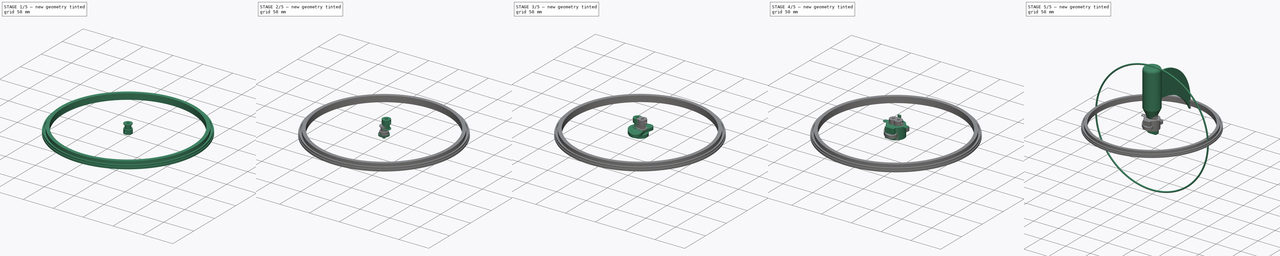
[diagram: build sequence overview — one tinted view per stage of 5, left to right]
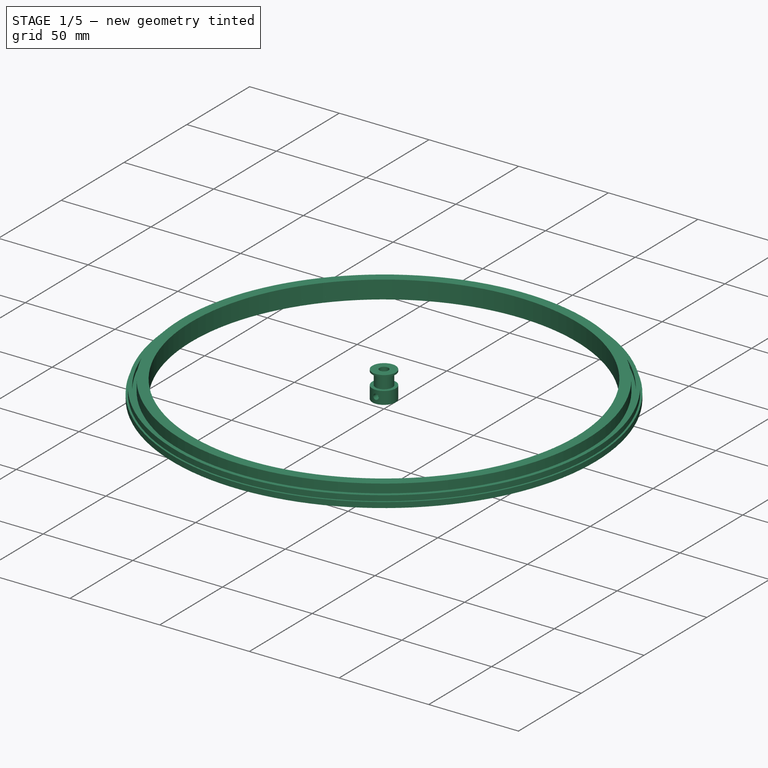
[diagram: stage 1 of 5 — iso view after this stage's code; geometry added in this stage tinted green]
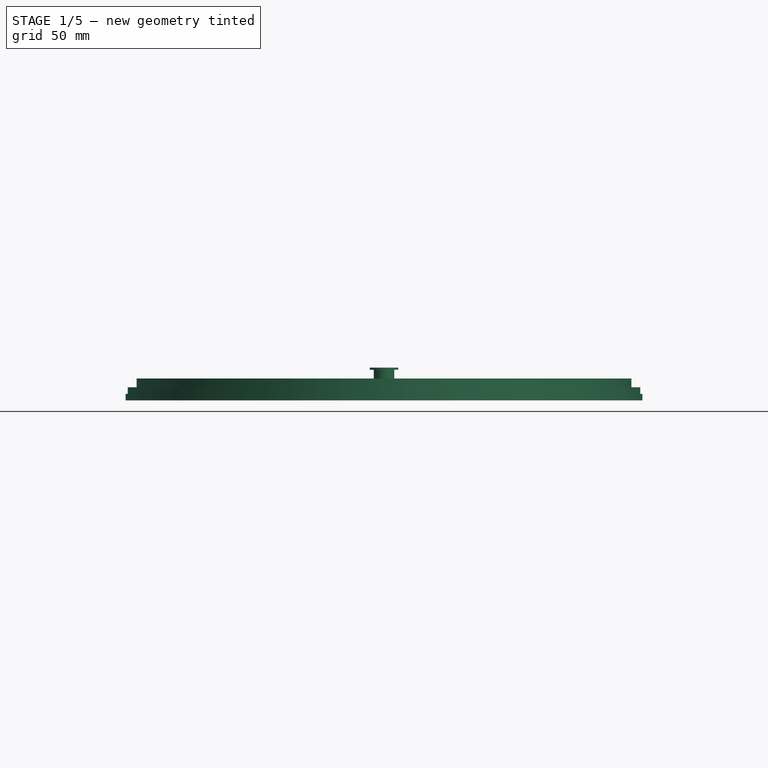
[diagram: stage 1 of 5 — front view after this stage's code; geometry added in this stage tinted green]
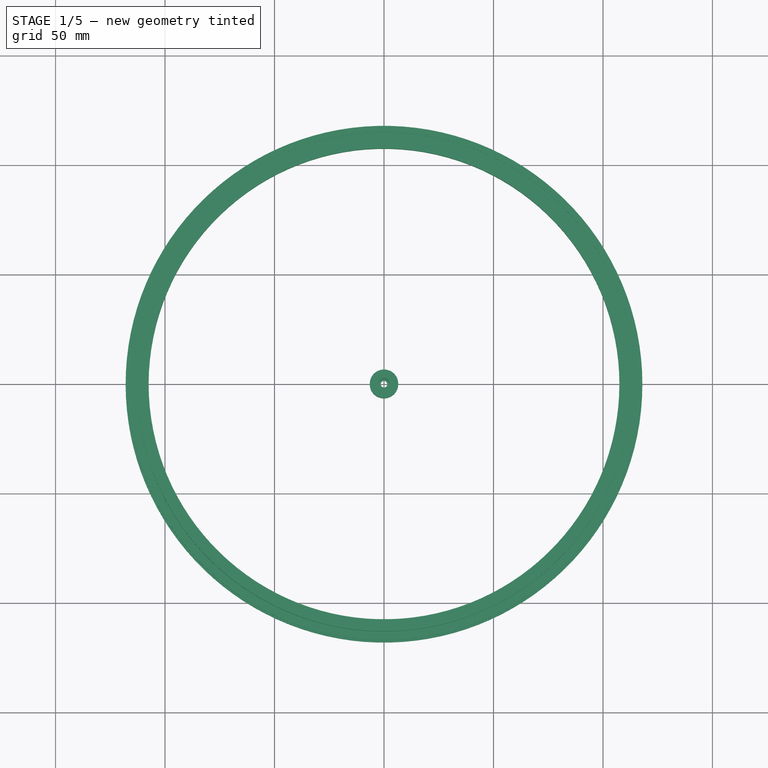
[diagram: stage 1 of 5 — top view after this stage's code; geometry added in this stage tinted green]
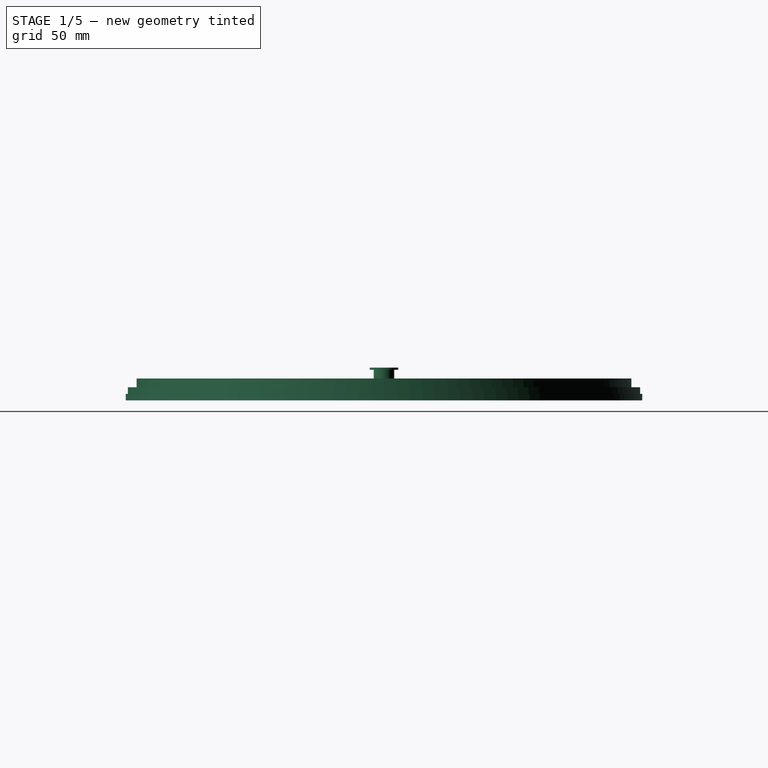
[diagram: stage 1 of 5 — right view after this stage's code; geometry added in this stage tinted green]
FCSTD DOCUMENT  (FreeCAD 0.19R)
Label: ensemble
License: All rights reserved
LicenseURL: CC-BY-NC 3.0
objects: Sketcher::SketchObject×58, PartDesign::Pad×41, PartDesign::Body×31, App::Part×13, PartDesign::Revolution×8, Part::Cut×6, PartDesign::Pocket×4, PartDesign::ShapeBinder×4, PartDesign::Hole×4, PartDesign::Chamfer×4, PartDesign::FeaturePython×2, Part::Sphere×1, Part::FeaturePython×1, PartDesign::FeatureBase×1
note: 226 computed .brp shape members not serialized (recipe doc carries the construction recipe); baked Part::Feature solids carry a one-line shape summary decoded from their .brp

FEATURE [PartDesign::Body] Body051
  Group = -> [CopyPad055,Sketch075,Pad056]
  Origin = -> Origin076
  Tip = -> Pad056
FEATURE [App::Part] Part010  label="slab"
  Group = -> [PocketBody,Body051]
  Origin = -> Origin074
  Placement = pos=(0,0,15) rot=(0,0,1;0rad)
FEATURE [PartDesign::Body] Body052  label="gear_30teeths"
  Group = -> [InvoluteGear002]
  Origin = -> Origin072
  Placement = pos=(-14.5,0,7) rot=(0,0,1;0rad)
  Tip = -> InvoluteGear002
FEATURE [App::Part] Part018  label="transmission_altitude"
  Group = -> [Part017,Sketch064,Revolution004,Sketch065,Pocket002,Sketch066,Pad051,Cut003,Sketch067,Pad052,Cut004,Chamfer002,Chamfer003,Sketch068,Pad053,Cut005,Body052]
  Origin = -> Origin068
  Placement = pos=(0,0,0) rot=(1,0,0;3.14159rad)
FEATURE [Sketcher::SketchObject] Sketch076
  FullyConstrained = false
  MapMode = 5
  Placement = pos=(0,-7,3.5) rot=(1,0,0;1.5708rad)
  sketch-geometry (1):
    g0: Circle CenterX=0 CenterY=0 CenterZ=0 NormalX=0 NormalY=0 NormalZ=1 AngleXU=0 Radius=1.5
  constraints (2):
    c: Coincident(g0,g-1)
    c: Radius(g0) = 1.5
FEATURE [PartDesign::Pad] Pad049
  AllowMultiFace = false
  Direction = (1,1,1)
  Length = 8
  Length2 = 100
  Placement = pos=(0,-7,3.5) rot=(1,0,0;1.5708rad)
  Profile = -> Sketch076
  Reversed = true
  Type = 0
FEATURE [PartDesign::Body] Body048  label="gear_12_teeth_M05"
  BaseFeature = -> InvoluteGear
  Group = -> [BaseFeature,Sketch071,Pad054,Sketch072,Hole,InvoluteGear001]
  Origin = -> Origin071
  Placement = pos=(-4,0,-10) rot=(0,0,1;0rad)
  Tip = -> InvoluteGear001
FEATURE [Sketcher::SketchObject] Sketch062
  FullyConstrained = false
  MapMode = 5
  Placement = pos=(0,0,0) rot=(1,0,0;1.5708rad)
  sketch-geometry (8):
    g0: LineSegment StartX=0 StartY=0 StartZ=0 EndX=6.5 EndY=0 EndZ=0
    g1: LineSegment StartX=6.5 StartY=0 StartZ=0 EndX=6.5 EndY=7 EndZ=0
    g2: LineSegment StartX=4.7 StartY=14 StartZ=0 EndX=4.7 EndY=7 EndZ=0
    g3: LineSegment StartX=4.7 StartY=7 StartZ=0 EndX=6.5 EndY=7 EndZ=0
    g4: LineSegment StartX=0 StartY=15 StartZ=0 EndX=6.5 EndY=15 EndZ=0
    g5: LineSegment StartX=6.5 StartY=15 StartZ=0 EndX=6.5 EndY=14 EndZ=0
    g6: LineSegment StartX=6.5 StartY=14 StartZ=0 EndX=4.7 EndY=14 EndZ=0
    g7: LineSegment StartX=0 StartY=15 StartZ=0 EndX=0 EndY=0 EndZ=0
  constraints (15):
    c: PointOnObject(g0,g-1)
    c: Horizontal(g0)
    c: Coincident(g1,g0)
    c: Vertical(g1)
    c: Vertical(g2)
    c: Coincident(g3,g2)
    c: Coincident(g3,g1)
    c: Horizontal(g4)
    c: Coincident(g4,g5)
    c: Vertical(g5)
    c: Coincident(g5,g6)
    c: Horizontal(g6)
    c: Vertical(g7)
    c: PointOnObject(g7,g4)
    c: Coincident(g4,g7)
FEATURE [PartDesign::Revolution] Revolution008
  AllowMultiFace = false
  Angle = 360
  Axis = (0,0,1)
  Base = (0,0,0)
  Placement = pos=(0,0,0) rot=(1,0,0;1.5708rad)
  Profile = -> Sketch062
  ReferenceAxis = -> Sketch062 [V_Axis]
  Reversed = true
FEATURE [PartDesign::Body] Body044  label="front_wheel"
  Group = -> [Sketch059,Pad046]
  Origin = -> Origin051
  Placement = pos=(4,14,13.5) rot=(0,0,1;0rad)
  Tip = -> Pad046
FEATURE [Sketcher::SketchObject] Sketch077
  FullyConstrained = false
  MapMode = 5
  Placement = pos=(0,3.3e-15,15) rot=(0,0,1;3.14159rad)
  Support = -> [Revolution008]
  sketch-geometry (1):
    g0: Circle CenterX=0 CenterY=0 CenterZ=0 NormalX=0 NormalY=0 NormalZ=1 AngleXU=0 Radius=2.5
  constraints (2):
    c: Coincident(g0,g-1)
    c: Radius(g0) = 2.5
FEATURE [PartDesign::Pocket] Pocket003
  AllowMultiFace = false
  Length = 15
  Length2 = 100
  Placement = pos=(0,0,0) rot=(1,0,0;1.5708rad)
  Profile = -> Sketch077
  Type = 0
FEATURE [PartDesign::Pad] Pad047
  Direction = (1,1,1)
  Length = 2.5
  Length2 = 100
  Profile = -> Sketch060
  Type = 0
FEATURE [PartDesign::Body] Body045  label="rear_wheel"
  Group = -> [Sketch060,Pad047]
  Origin = -> Origin052
  Placement = pos=(4,-14,13.5) rot=(0,0,1;0rad)
  Tip = -> Pad047
FEATURE [Part::Cut] Cut
  Base = -> Pocket003
  Tool = -> Pad049
FEATURE [App::Part] Part016  label="transmission_latitude"
  Group = -> [Part009,Sketch062,Revolution008,Sketch077,Pocket003,Sketch076,Pad049,Cut,Sketch078,Pad057,Cut001,Chamfer,Chamfer001,Sketch053,Pad041,Cut002]
  Origin = -> Origin057
  Placement = pos=(0,0,0) rot=(0,0,1;3.14159rad)
FEATURE [App::Part] Part015  label="quad"
  Group = -> [Part016,Body045,Body044,Part018,InvoluteGear,Body048,Body050,Part010]
  Origin = -> Origin066
  Placement = pos=(6,123,0) rot=(0,0,1;-1.5708rad)
FEATURE [Sketcher::SketchObject] Sketch057
  FullyConstrained = true
  MapMode = 5
  Support = -> [XY_Plane050]
  sketch-geometry (2):
    g0: Circle CenterX=0 CenterY=0 CenterZ=0 NormalX=0 NormalY=0 NormalZ=1 AngleXU=0 Radius=115
    g1: Circle CenterX=0 CenterY=0 CenterZ=0 NormalX=0 NormalY=0 NormalZ=1 AngleXU=0 Radius=118
  constraints (4):
    c: Coincident(g0,g-1)
    c: Diameter(g0) = 230  'dia_int'
    c: Coincident(g1,g0)
    c: Diameter(g1) = 236  'dia_ext'
FEATURE [PartDesign::Pad] Pad044  label="cyl_low006"
  Direction = (1,1,1)
  Length = 1.5
  Length2 = 100
  Profile = -> Sketch057
  Type = 0
FEATURE [PartDesign::Body] Body042  label="central_sep001"
  Group = -> [Pad044,Sketch057]
  Origin = -> Origin048
  Placement = pos=(0,0,-11.5) rot=(0,0,1;0rad)
  Tip = -> Pad044
FEATURE [Sketcher::SketchObject] Sketch058
  FullyConstrained = true
  MapMode = 5
  Support = -> [XY_Plane051]
  sketch-geometry (2):
    g0: Circle CenterX=0 CenterY=0 CenterZ=0 NormalX=0 NormalY=0 NormalZ=1 AngleXU=0 Radius=107.5
    g1: Circle CenterX=0 CenterY=0 CenterZ=0 NormalX=0 NormalY=0 NormalZ=1 AngleXU=0 Radius=118
  constraints (4):
    c: Coincident(g0,g-1)
    c: Diameter(g0) = 215  'dia_int'
    c: Coincident(g1,g0)
    c: Diameter(g1) = 236  'dia_ext'
FEATURE [Sketcher::SketchObject] Sketch056
  FullyConstrained = true
  MapMode = 5
  Support = -> [XY_Plane049]
  sketch-geometry (2):
    g0: Circle CenterX=0 CenterY=0 CenterZ=0 NormalX=0 NormalY=0 NormalZ=1 AngleXU=0 Radius=107.5
    g1: Circle CenterX=0 CenterY=0 CenterZ=0 NormalX=0 NormalY=0 NormalZ=1 AngleXU=0 Radius=113
  constraints (4):
    c: Coincident(g0,g-1)
    c: Diameter(g0) = 215  'dia_int'
    c: Coincident(g1,g0)
    c: Diameter(g1) = 226  'dia_ext'
FEATURE [PartDesign::Pad] Pad043  label="cyl_low005"
  Direction = (1,1,1)
  Length = 10
  Length2 = 100
  Profile = -> Sketch056
  Type = 0
FEATURE [PartDesign::Body] Body041  label="upper_rail001"
  Group = -> [Pad043,Sketch056]
  Origin = -> Origin047
  Placement = pos=(0,0,-28) rot=(0,0,1;0rad)
  Tip = -> Pad043
FEATURE [Sketcher::SketchObject] Sketch055
  FullyConstrained = true
  MapMode = 5
  Support = -> [XY_Plane048]
  sketch-geometry (2):
    g0: Circle CenterX=0 CenterY=0 CenterZ=0 NormalX=0 NormalY=0 NormalZ=1 AngleXU=0 Radius=115
    g1: Circle CenterX=0 CenterY=0 CenterZ=0 NormalX=0 NormalY=0 NormalZ=1 AngleXU=0 Radius=117
  constraints (4):
    c: Coincident(g0,g-1)
    c: Diameter(g0) = 230  'dia_int'
    c: Coincident(g1,g0)
    c: Diameter(g1) = 234  'dia_ext'
FEATURE [PartDesign::Pad] Pad042  label="cyl_low004"
  Direction = (1,1,1)
  Length = 6
  Length2 = 100
  Profile = -> Sketch055
  Type = 0
FEATURE [PartDesign::Body] Body040  label="lower_rail001"
  Group = -> [Pad042,Sketch055]
  Origin = -> Origin046
  Placement = pos=(0,0,-17) rot=(0,0,1;0rad)
  Tip = -> Pad042
FEATURE [PartDesign::Pad] Pad045  label="cyl_low007"
  Direction = (1,1,1)
  Length = 1.5
  Length2 = 100
  Profile = -> Sketch058
  Type = 0
FEATURE [PartDesign::Body] Body043  label="upper_sep001"
  Group = -> [Pad045,Sketch058]
  Origin = -> Origin049
  Placement = pos=(0,0,-18.5) rot=(0,0,1;0rad)
  Tip = -> Pad045
FEATURE [Sketcher::SketchObject] Sketch079
  FullyConstrained = true
  MapMode = 5
  Support = -> [XY_Plane079]
  sketch-geometry (2):
    g0: Circle CenterX=0 CenterY=0 CenterZ=0 NormalX=0 NormalY=0 NormalZ=1 AngleXU=0 Radius=110
    g1: Circle CenterX=0 CenterY=0 CenterZ=0 NormalX=0 NormalY=0 NormalZ=1 AngleXU=0 Radius=115
  constraints (4):
    c: Coincident(g0,g-1)
    c: Diameter(g0) = 220  'dia_int'
    c: Coincident(g1,g0)
    c: Diameter(g1) = 230  'dia_ext'
FEATURE [PartDesign::Pad] Pad059  label="cyl_low009"
  Direction = (1,1,1)
  Length = 4
  Length2 = 100
  Profile = -> Sketch079
  Type = 0
FEATURE [Sketcher::SketchObject] Sketch080
  FullyConstrained = true
  MapMode = 5
  Support = -> [XY_Plane083]
  sketch-geometry (2):
    g0: Circle CenterX=0 CenterY=0 CenterZ=0 NormalX=0 NormalY=0 NormalZ=1 AngleXU=0 Radius=115
    g1: Circle CenterX=0 CenterY=0 CenterZ=0 NormalX=0 NormalY=0 NormalZ=1 AngleXU=0 Radius=118
  constraints (4):
    c: Coincident(g0,g-1)
    c: Diameter(g0) = 230  'dia_int'
    c: Coincident(g1,g0)
    c: Diameter(g1) = 236  'dia_ext'
FEATURE [Sketcher::SketchObject] Sketch081
  FullyConstrained = true
  MapMode = 5
  Support = -> [XY_Plane081]
  sketch-geometry (2):
    g0: Circle CenterX=0 CenterY=0 CenterZ=0 NormalX=0 NormalY=0 NormalZ=1 AngleXU=0 Radius=115
    g1: Circle CenterX=0 CenterY=0 CenterZ=0 NormalX=0 NormalY=0 NormalZ=1 AngleXU=0 Radius=118
  constraints (4):
    c: Coincident(g0,g-1)
    c: Diameter(g0) = 230  'dia_int'
    c: Coincident(g1,g0)
    c: Diameter(g1) = 236  'dia_ext'
FEATURE [PartDesign::Pad] Pad058  label="cyl_low008"
  Direction = (1,1,1)
  Length = 1.5
  Length2 = 100
  Profile = -> Sketch081
  Type = 0
FEATURE [PartDesign::Body] Body055  label="central_sep002"
  Group = -> [Pad058,Sketch081]
  Origin = -> Origin080
  Placement = pos=(0,0,-11.5) rot=(0,0,1;0rad)
  Tip = -> Pad058
FEATURE [PartDesign::Body] Body056  label="upper_rail002"
  Group = -> [Pad059,Sketch079]
  Origin = -> Origin078
  Placement = pos=(0,0,-23) rot=(0,0,1;0rad)
  Tip = -> Pad059
FEATURE [Sketcher::SketchObject] Sketch082
  FullyConstrained = true
  MapMode = 5
  Support = -> [XY_Plane082]
  sketch-geometry (2):
    g0: Circle CenterX=0 CenterY=0 CenterZ=0 NormalX=0 NormalY=0 NormalZ=1 AngleXU=0 Radius=115
    g1: Circle CenterX=0 CenterY=0 CenterZ=0 NormalX=0 NormalY=0 NormalZ=1 AngleXU=0 Radius=117
  constraints (4):
    c: Coincident(g0,g-1)
    c: Diameter(g0) = 230  'dia_int'
    c: Coincident(g1,g0)
    c: Diameter(g1) = 234  'dia_ext'
FEATURE [PartDesign::Pad] Pad060  label="cyl_low010"
  Direction = (1,1,1)
  Length = 6
  Length2 = 100
  Profile = -> Sketch082
  Type = 0
FEATURE [PartDesign::Body] Body053  label="lower_rail002"
  Group = -> [Pad060,Sketch082]
  Origin = -> Origin079
  Placement = pos=(0,0,-17) rot=(0,0,1;0rad)
  Tip = -> Pad060
FEATURE [PartDesign::Pad] Pad061  label="cyl_low011"
  Direction = (1,1,1)
  Length = 1.5
  Length2 = 100
  Profile = -> Sketch080
  Type = 0
FEATURE [PartDesign::Body] Body054  label="upper_sep002"
  Group = -> [Pad061,Sketch080]
  Origin = -> Origin081
  Placement = pos=(0,0,-18.5) rot=(0,0,1;0rad)
  Tip = -> Pad061
FEATURE [App::Part] Part019  label="lower_base"
  Group = -> [Body056,Body055,Body054,Body053]
  Origin = -> Origin077
FEATURE [Sketcher::SketchObject] Sketch083
  FullyConstrained = true
  MapMode = 5
  Support = -> [XY_Plane084]
  sketch-geometry (2):
    g0: Circle CenterX=0 CenterY=0 CenterZ=0 NormalX=0 NormalY=0 NormalZ=1 AngleXU=0 Radius=107.5
    g1: Circle CenterX=0 CenterY=0 CenterZ=0 NormalX=0 NormalY=0 NormalZ=1 AngleXU=0 Radius=118
  constraints (4):
    c: Coincident(g0,g-1)
    c: Diameter(g0) = 215  'dia_int'
    c: Coincident(g1,g0)
    c: Diameter(g1) = 236  'dia_ext'
FEATURE [PartDesign::Pad] Pad062  label="cyl_low012"
  Direction = (1,1,1)
  Length = 3
  Length2 = 100
  Profile = -> Sketch083
  Type = 0
FEATURE [PartDesign::Body] Body057  label="upper_sep003"
  Group = -> [Pad062,Sketch083]
  Origin = -> Origin082
  Placement = pos=(0,0,-30) rot=(0,0,1;0rad)
  Tip = -> Pad062
FEATURE [App::Part] Part007  label="upper_base"
  Group = -> [Body041,Body042,Body043,Body040,Body057]
  Origin = -> Origin050
  Placement = pos=(0,0,0) rot=(1,0,0;3.14159rad)
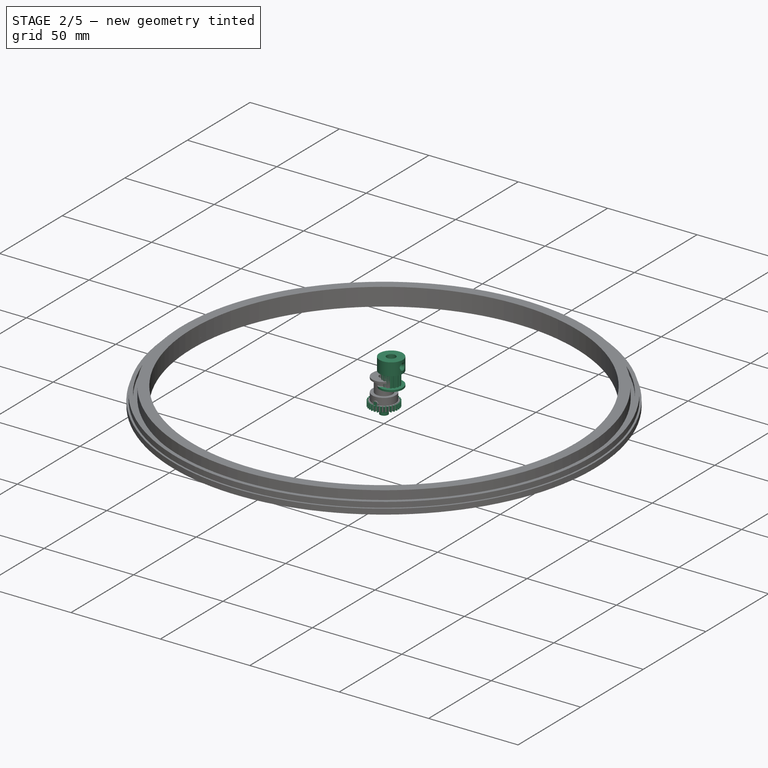
[diagram: stage 2 of 5 — iso view after this stage's code; geometry added in this stage tinted green]
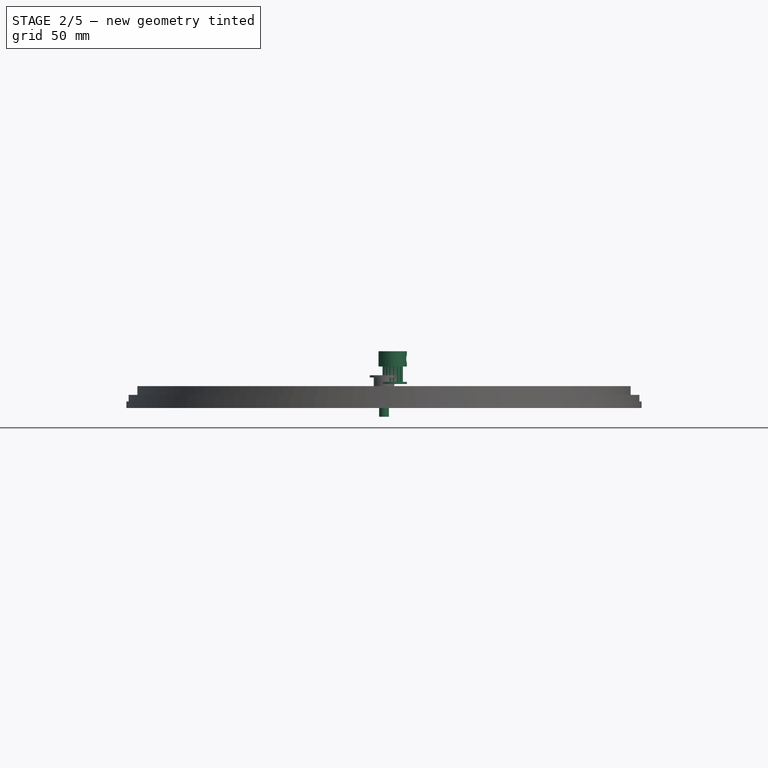
[diagram: stage 2 of 5 — front view after this stage's code; geometry added in this stage tinted green]
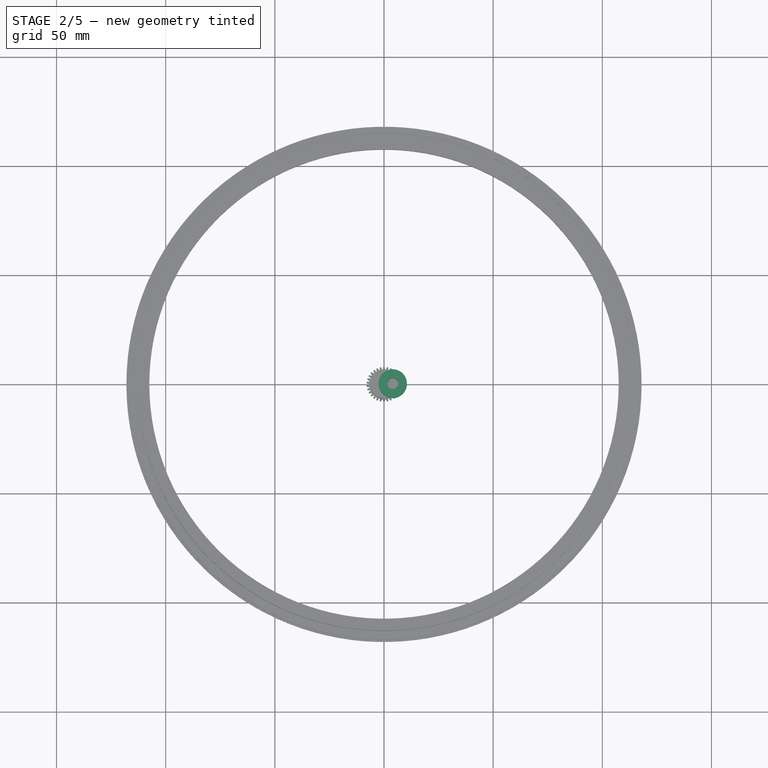
[diagram: stage 2 of 5 — top view after this stage's code; geometry added in this stage tinted green]
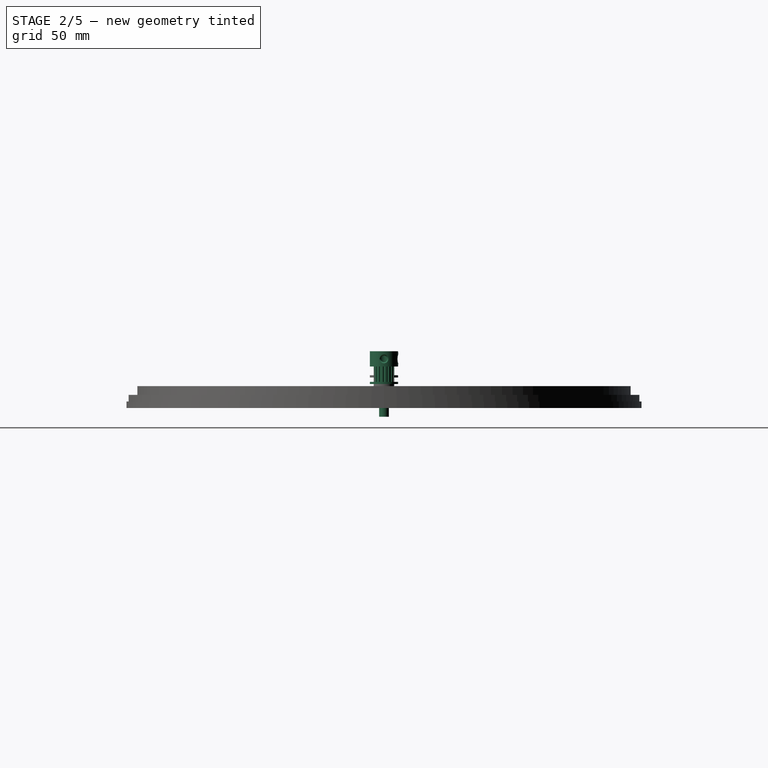
[diagram: stage 2 of 5 — right view after this stage's code; geometry added in this stage tinted green]
FEATURE [PartDesign::Body] Body037
  Group = -> [CopyPad005,Sketch051,Pad040,Sketch052,Hole003,Sketch050,Pad039]
  Origin = -> Origin041
  Tip = -> Pad039
FEATURE [App::Part] Part005  label="28BYJ_focus"
  Group = -> [Body037,Body036]
  Origin = -> Origin042
  Placement = pos=(0,0,0) rot=(-0.707107,0.707107,0;3.14159rad)
FEATURE [App::Part] Part006  label="moteur_focus"
  Group = -> [Part005]
  Origin = -> Origin044
  Placement = pos=(160,0,-8) rot=(0,1,0;3.14159rad)
FEATURE [Sketcher::SketchObject] Sketch053
  FullyConstrained = false
  MapMode = 5
  Placement = pos=(0,0,14) rot=(0,0,1;0rad)
  sketch-geometry (16):
    g0: Circle CenterX=0 CenterY=4.7 CenterZ=0 NormalX=0 NormalY=0 NormalZ=1 AngleXU=0 Radius=0.5
    g1: Circle CenterX=0 CenterY=-4.7 CenterZ=0 NormalX=0 NormalY=0 NormalZ=1 AngleXU=0 Radius=0.5
    g2: Circle CenterX=4.7 CenterY=0 CenterZ=0 NormalX=0 NormalY=0 NormalZ=1 AngleXU=0 Radius=0.5
    g3: Circle CenterX=-4.7 CenterY=0 CenterZ=0 NormalX=0 NormalY=0 NormalZ=1 AngleXU=0 Radius=0.5
    g4: Circle CenterX=-3.3234 CenterY=3.3234 CenterZ=0 NormalX=0 NormalY=0 NormalZ=1 AngleXU=0 Radius=0.5
    g5: Circle CenterX=3.3234 CenterY=3.3234 CenterZ=0 NormalX=0 NormalY=0 NormalZ=1 AngleXU=0 Radius=0.5
    g6: Circle CenterX=-3.3234 CenterY=-3.3234 CenterZ=0 NormalX=0 NormalY=0 NormalZ=1 AngleXU=0 Radius=0.5
    g7: Circle CenterX=3.3234 CenterY=-3.3234 CenterZ=0 NormalX=0 NormalY=0 NormalZ=1 AngleXU=0 Radius=0.5
    g8: Circle CenterX=-1.79861 CenterY=4.34223 CenterZ=0 NormalX=0 NormalY=0 NormalZ=1 AngleXU=0 Radius=0.5
    g9: Circle CenterX=1.79861 CenterY=4.34223 CenterZ=0 NormalX=0 NormalY=0 NormalZ=1 AngleXU=0 Radius=0.5
    g10: Circle CenterX=4.34223 CenterY=1.79861 CenterZ=0 NormalX=0 NormalY=0 NormalZ=1 AngleXU=0 Radius=0.5
    g11: Circle CenterX=4.34223 CenterY=-1.79861 CenterZ=0 NormalX=0 NormalY=0 NormalZ=1 AngleXU=0 Radius=0.5
    g12: Circle CenterX=1.79861 CenterY=-4.34223 CenterZ=0 NormalX=0 NormalY=0 NormalZ=1 AngleXU=0 Radius=0.5
    g13: Circle CenterX=-1.79861 CenterY=-4.34223 CenterZ=0 NormalX=0 NormalY=0 NormalZ=1 AngleXU=0 Radius=0.5
    g14: Circle CenterX=-4.34223 CenterY=-1.79861 CenterZ=0 NormalX=0 NormalY=0 NormalZ=1 AngleXU=0 Radius=0.5
    g15: Circle CenterX=-4.31471 CenterY=1.86367 CenterZ=0 NormalX=0 NormalY=0 NormalZ=1 AngleXU=0 Radius=0.5
  constraints (16):
    c: Radius(g0) = 0.5
    c: Equal(g0,g8)
    c: Equal(g8,g4)
    c: Equal(g4,g15)
    c: Equal(g15,g3)
    c: Equal(g3,g14)
    c: Equal(g14,g6)
    c: Equal(g6,g13)
    c: Equal(g13,g1)
    c: Equal(g1,g12)
    c: Equal(g12,g7)
    c: Equal(g7,g11)
    c: Equal(g11,g2)
    c: Equal(g2,g10)
    c: Equal(g10,g5)
    c: Equal(g5,g9)
FEATURE [Sketcher::SketchObject] Sketch060
  FullyConstrained = true
  MapMode = 5
  Support = -> [XY_Plane054]
  sketch-geometry (2):
    g0: Circle CenterX=0 CenterY=0 CenterZ=0 NormalX=0 NormalY=0 NormalZ=1 AngleXU=0 Radius=3.5
    g1: Circle CenterX=0 CenterY=0 CenterZ=0 NormalX=0 NormalY=0 NormalZ=1 AngleXU=0 Radius=1.5
  constraints (4):
    c: Coincident(g0,g-1)
    c: Coincident(g1,g0)
    c: Diameter(g1) = 3  'dia_int·'
    c: Diameter(g0) = 7  'dia_ext'
FEATURE [Sketcher::SketchObject] Sketch066
  FullyConstrained = false
  MapMode = 5
  Placement = pos=(0,-7,3.5) rot=(1,0,0;1.5708rad)
  sketch-geometry (1):
    g0: Circle CenterX=0 CenterY=0 CenterZ=0 NormalX=0 NormalY=0 NormalZ=1 AngleXU=0 Radius=1.5
  constraints (2):
    c: Coincident(g0,g-1)
    c: Radius(g0) = 1.5
FEATURE [PartDesign::Pad] Pad041
  AllowMultiFace = false
  Direction = (1,1,1)
  Length = 7
  Length2 = 100
  Placement = pos=(0,0,14) rot=(0,0,1;0rad)
  Profile = -> Sketch053
  Reversed = true
  Type = 0
FEATURE [PartDesign::ShapeBinder] CopyPad055
  Placement = pos=(0,0,5) rot=(0,0,1;0rad)
  TraceSupport = false
FEATURE [Sketcher::SketchObject] Sketch070
  FullyConstrained = true
  MapMode = 5
  Support = -> [XY_Plane071]
  sketch-geometry (7):
    g0: LineSegment StartX=-10.2642 StartY=4 StartZ=0 EndX=-4.26421 EndY=4 EndZ=0
    g1: LineSegment StartX=-4.26421 StartY=4 StartZ=0 EndX=-3.91421 EndY=4.35 EndZ=0
    g2: LineSegment StartX=-3.91421 StartY=4.35 StartZ=0 EndX=-2.5 EndY=2.93579 EndZ=0
    g3: LineSegment StartX=-2.5 StartY=2.93579 StartZ=0 EndX=-2.85 EndY=2.58579 EndZ=0
    g4: LineSegment StartX=-2.85 StartY=2.58579 StartZ=0 EndX=-2.85 EndY=1.5 EndZ=0
    g5: LineSegment StartX=-2.85 StartY=1.5 StartZ=0 EndX=-10.2642 EndY=1.5 EndZ=0
    g6: LineSegment StartX=-10.2642 StartY=1.5 StartZ=0 EndX=-10.2642 EndY=4 EndZ=0
  constraints (21):
    c: Horizontal(g0)
    c: Coincident(g0,g1)
    c: Coincident(g1,g2)
    c: Coincident(g2,g3)
    c: Coincident(g3,g4)
    c: Vertical(g4)
    c: Coincident(g4,g5)
    c: Horizontal(g5)
    c: Coincident(g5,g6)
    c: Coincident(g6,g0)
    c: Vertical(g6)
    c: DistanceX(g0,g0) = 6  'Lm'
    c: Parallel(g3,g1)
    c: Distance(g2) = 2  'F'
    c: Angle(g1,g0) = 2.35619
    c: DistanceY(g-1,g4) = 1.5  'bore'
    c: DistanceY(g-1,g0) = 4  'rm'
    c: DistanceY(g-1,g1) = 4.35
    c: Perpendicular(g1,g2)
    c: DistanceX(g2,g-1) = 2.5
    c: Equal(g3,g1)
FEATURE [PartDesign::FeaturePython] InvoluteGear002  # WARN: FeaturePython — macro-defined, semantics opaque (R4)
  AttacherType = Attacher::AttachEngine3D
  Placement = pos=(0,0,0) rot=(0,0,1;0.10472rad)
  angular_backlash = 0
  backlash = 0
  beta = 0
  clearance = 0.25
  da = 16
  df = 13.75
  double_helix = false
  dw = 15
  head = 0
  head_fillet = 0
  height = 3
  module = 0.5
  numpoints = 6
  pressure_angle = 20
  properties_from_tool = false
  reversed_backlash = false
  root_fillet = 0
  shift = 0
  simple = false
  teeth = 30
  transverse_pitch = 1.5708
  undercut = false
  version = 0.0.4
  expr: dw = teeth * module
  expr: angular_backlash = backlash / dw * 360° / pi
FEATURE [Part::FeaturePython] InvoluteGear  # WARN: FeaturePython — macro-defined, semantics opaque (R4)
  AttacherType = Attacher::AttachEngine3D
  angular_backlash = 0
  backlash = 0
  beta = 0
  clearance = 0.25
  da = 7
  df = 4.75
  double_helix = false
  dw = 6
  head = 0
  head_fillet = 0
  height = 3
  module = 0.5
  numpoints = 6
  pressure_angle = 20
  properties_from_tool = false
  reversed_backlash = false
  root_fillet = 0
  shift = 0
  simple = false
  teeth = 12
  transverse_pitch = 1.5708
  undercut = false
  version = 0.0.4
  expr: dw = teeth * module
  expr: angular_backlash = backlash / dw * 360° / pi
FEATURE [PartDesign::Body] Body046  label="bevel_x001"
  Group = -> [Sketch069,Revolution005]
  Origin = -> Origin069
  Tip = -> Revolution005
FEATURE [Sketcher::SketchObject] Sketch064
  FullyConstrained = false
  MapMode = 5
  Placement = pos=(0,0,0) rot=(1,0,0;1.5708rad)
  sketch-geometry (8):
    g0: LineSegment StartX=0 StartY=0 StartZ=0 EndX=6.5 EndY=0 EndZ=0
    g1: LineSegment StartX=6.5 StartY=0 StartZ=0 EndX=6.5 EndY=7 EndZ=0
    g2: LineSegment StartX=4.7 StartY=14 StartZ=0 EndX=4.7 EndY=7 EndZ=0
    g3: LineSegment StartX=4.7 StartY=7 StartZ=0 EndX=6.5 EndY=7 EndZ=0
    g4: LineSegment StartX=0 StartY=15 StartZ=0 EndX=6.5 EndY=15 EndZ=0
    g5: LineSegment StartX=6.5 StartY=15 StartZ=0 EndX=6.5 EndY=14 EndZ=0
    g6: LineSegment StartX=6.5 StartY=14 StartZ=0 EndX=4.7 EndY=14 EndZ=0
    g7: LineSegment StartX=0 StartY=15 StartZ=0 EndX=0 EndY=0 EndZ=0
  constraints (15):
    c: PointOnObject(g0,g-1)
    c: Horizontal(g0)
    c: Coincident(g1,g0)
    c: Vertical(g1)
    c: Vertical(g2)
    c: Coincident(g3,g2)
    c: Coincident(g3,g1)
    c: Horizontal(g4)
    c: Coincident(g4,g5)
    c: Vertical(g5)
    c: Coincident(g5,g6)
    c: Horizontal(g6)
    c: Vertical(g7)
    c: PointOnObject(g7,g4)
    c: Coincident(g4,g7)
FEATURE [PartDesign::Revolution] Revolution004
  AllowMultiFace = false
  Angle = 360
  Axis = (0,0,1)
  Base = (0,0,0)
  Placement = pos=(0,0,0) rot=(1,0,0;1.5708rad)
  Profile = -> Sketch064
  ReferenceAxis = -> Sketch064 [V_Axis]
  Reversed = true
FEATURE [Sketcher::SketchObject] Sketch065
  FullyConstrained = false
  MapMode = 5
  Placement = pos=(0,3.3e-15,15) rot=(0,0,1;3.14159rad)
  Support = -> [Revolution004]
  sketch-geometry (1):
    g0: Circle CenterX=0 CenterY=0 CenterZ=0 NormalX=0 NormalY=0 NormalZ=1 AngleXU=0 Radius=2.5
  constraints (2):
    c: Coincident(g0,g-1)
    c: Radius(g0) = 2.5
FEATURE [PartDesign::Pocket] Pocket002
  AllowMultiFace = false
  Length = 15
  Length2 = 100
  Placement = pos=(0,0,0) rot=(1,0,0;1.5708rad)
  Profile = -> Sketch065
  Type = 0
FEATURE [PartDesign::FeatureBase] BaseFeature
  BaseFeature = -> InvoluteGear
FEATURE [Sketcher::SketchObject] Sketch071
  FullyConstrained = true
  MapMode = 5
  Placement = pos=(0,0,3) rot=(0,0,1;0rad)
  Support = -> [BaseFeature]
  sketch-geometry (1):
    g0: Circle CenterX=0 CenterY=0 CenterZ=0 NormalX=0 NormalY=0 NormalZ=1 AngleXU=0 Radius=2.25
  constraints (2):
    c: Coincident(g0,g-1)
    c: Diameter(g0) = 4.5  'phi_hub'
FEATURE [PartDesign::Pad] Pad054
  BaseFeature = -> BaseFeature
  Direction = (1,1,1)
  Length = 7
  Length2 = 100
  Profile = -> Sketch071
  Reversed = true
  Type = 0
FEATURE [Sketcher::SketchObject] Sketch007
  FullyConstrained = true
  MapMode = 5
  Support = -> [XY_Plane007]
  sketch-geometry (7):
    g0: LineSegment StartX=-10.2642 StartY=4 StartZ=0 EndX=-4.26421 EndY=4 EndZ=0
    g1: LineSegment StartX=-4.26421 StartY=4 StartZ=0 EndX=-3.91421 EndY=4.35 EndZ=0
    g2: LineSegment StartX=-3.91421 StartY=4.35 StartZ=0 EndX=-2.5 EndY=2.93579 EndZ=0
    g3: LineSegment StartX=-2.5 StartY=2.93579 StartZ=0 EndX=-2.85 EndY=2.58579 EndZ=0
    g4: LineSegment StartX=-2.85 StartY=2.58579 StartZ=0 EndX=-2.85 EndY=1.5 EndZ=0
    g5: LineSegment StartX=-2.85 StartY=1.5 StartZ=0 EndX=-10.2642 EndY=1.5 EndZ=0
    g6: LineSegment StartX=-10.2642 StartY=1.5 StartZ=0 EndX=-10.2642 EndY=4 EndZ=0
  constraints (21):
    c: Horizontal(g0)
    c: Coincident(g0,g1)
    c: Coincident(g1,g2)
    c: Coincident(g2,g3)
    c: Coincident(g3,g4)
    c: Vertical(g4)
    c: Coincident(g4,g5)
    c: Horizontal(g5)
    c: Coincident(g5,g6)
    c: Coincident(g6,g0)
    c: Vertical(g6)
    c: DistanceX(g0,g0) = 6  'Lm'
    c: Parallel(g3,g1)
    c: Distance(g2) = 2  'F'
    c: Angle(g1,g0) = 2.35619
    c: DistanceY(g-1,g4) = 1.5  'bore'
    c: DistanceY(g-1,g0) = 4  'rm'
    c: DistanceY(g-1,g1) = 4.35
    c: Perpendicular(g1,g2)
    c: DistanceX(g2,g-1) = 2.5
    c: Equal(g3,g1)
FEATURE [PartDesign::Pad] Pad051
  AllowMultiFace = false
  Direction = (1,1,1)
  Length = 8
  Length2 = 100
  Placement = pos=(0,-7,3.5) rot=(1,0,0;1.5708rad)
  Profile = -> Sketch066
  Reversed = true
  Type = 0
FEATURE [Sketcher::SketchObject] Sketch072
  FullyConstrained = true
  MapMode = 5
  Placement = pos=(0,0,3) rot=(0,0,1;0rad)
  Support = -> [Pad054]
  sketch-geometry (1):
    g0: Circle CenterX=0 CenterY=0 CenterZ=0 NormalX=0 NormalY=0 NormalZ=1 AngleXU=0 Radius=1
  constraints (2):
    c: Coincident(g0,g-1)
    c: Diameter(g0) = 2
FEATURE [PartDesign::Hole] Hole
  BaseFeature = -> Pad054
  Depth = 25
  DepthType = 1
  Diameter = 2
  DrillForDepth = false
  DrillPoint = 0
  DrillPointAngle = 118
  HoleCutCountersinkAngle = 90
  HoleCutCustomValues = false
  HoleCutDepth = 0
  HoleCutDiameter = 6.1
  HoleCutType = 0
  ModelActualThread = false
  Profile = -> Sketch072
  Tapered = false
  TaperedAngle = 90
  ThreadAngle = 0
  ThreadClass = 0
  ThreadCutOffInner = 0
  ThreadCutOffOuter = 0
  ThreadDirection = 0
  ThreadFit = 0
  ThreadPitch = 0
  ThreadSize = 0
  ThreadType = 0
  Threaded = false
FEATURE [Sketcher::SketchObject] Sketch059
  FullyConstrained = true
  MapMode = 5
  Support = -> [XY_Plane053]
  sketch-geometry (2):
    g0: Circle CenterX=0 CenterY=0 CenterZ=0 NormalX=0 NormalY=0 NormalZ=1 AngleXU=0 Radius=3.5
    g1: Circle CenterX=0 CenterY=0 CenterZ=0 NormalX=0 NormalY=0 NormalZ=1 AngleXU=0 Radius=1.5
  constraints (4):
    c: Coincident(g0,g-1)
    c: Coincident(g1,g0)
    c: Diameter(g1) = 3  'dia_int·'
    c: Diameter(g0) = 7  'dia_ext'
FEATURE [PartDesign::Pad] Pad046
  Direction = (1,1,1)
  Length = 2.5
  Length2 = 100
  Profile = -> Sketch059
  Type = 0
FEATURE [Sketcher::SketchObject] Sketch078
  FullyConstrained = false
  MapMode = 5
  Placement = pos=(7,0,3.5) rot=(0.57735,0.57735,0.57735;2.0944rad)
  sketch-geometry (1):
    g0: Circle CenterX=0 CenterY=0 CenterZ=0 NormalX=0 NormalY=0 NormalZ=1 AngleXU=0 Radius=1.5
  constraints (2):
    c: Coincident(g0,g-1)
    c: Radius(g0) = 1.5
FEATURE [PartDesign::Pad] Pad057
  AllowMultiFace = false
  Direction = (1,1,1)
  Length = 8
  Length2 = 100
  Placement = pos=(7,0,3.5) rot=(0.57735,0.57735,0.57735;2.0944rad)
  Profile = -> Sketch078
  Reversed = true
  Type = 0
FEATURE [Part::Cut] Cut001
  Base = -> Cut
  Tool = -> Pad057
FEATURE [PartDesign::Chamfer] Chamfer
  Angle = 45
  Base = -> Cut001 [Edge11,Edge10,Edge8,Edge9,Edge4,Edge5]
  ChamferType = 0
  FlipDirection = false
  Size = 0.5
  Size2 = 1
  SupportTransform = false
FEATURE [PartDesign::Chamfer] Chamfer001
  Angle = 45
  Base = -> Chamfer [Edge22]
  ChamferType = 0
  FlipDirection = false
  Size = 0.5
  Size2 = 1
  SupportTransform = false
FEATURE [Part::Cut] Cut002  label="GT1_pulley"
  Base = -> Chamfer001
  Placement = pos=(4,0,26) rot=(1,0,0;3.14159rad)
  Tool = -> Pad041
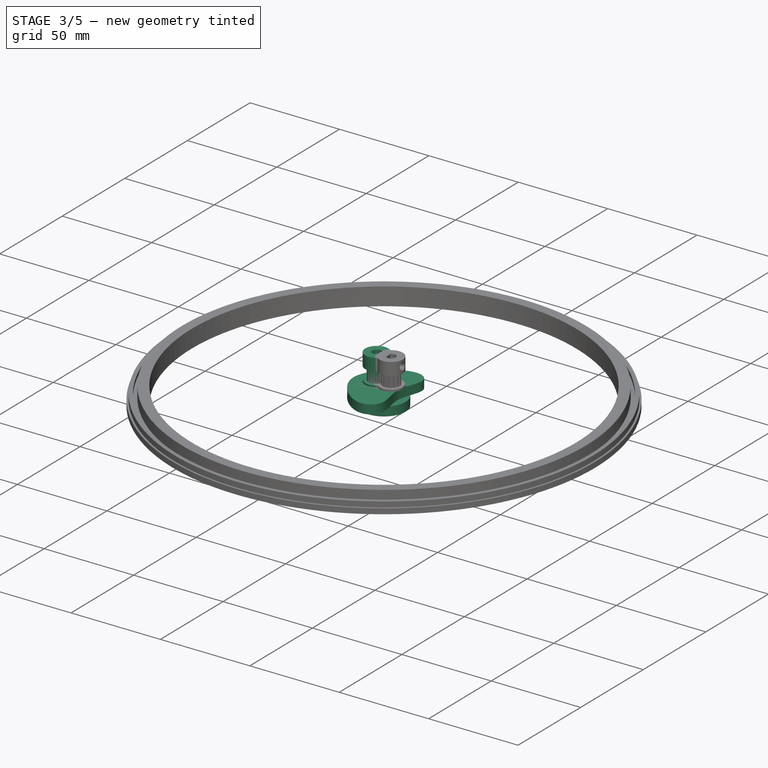
[diagram: stage 3 of 5 — iso view after this stage's code; geometry added in this stage tinted green]
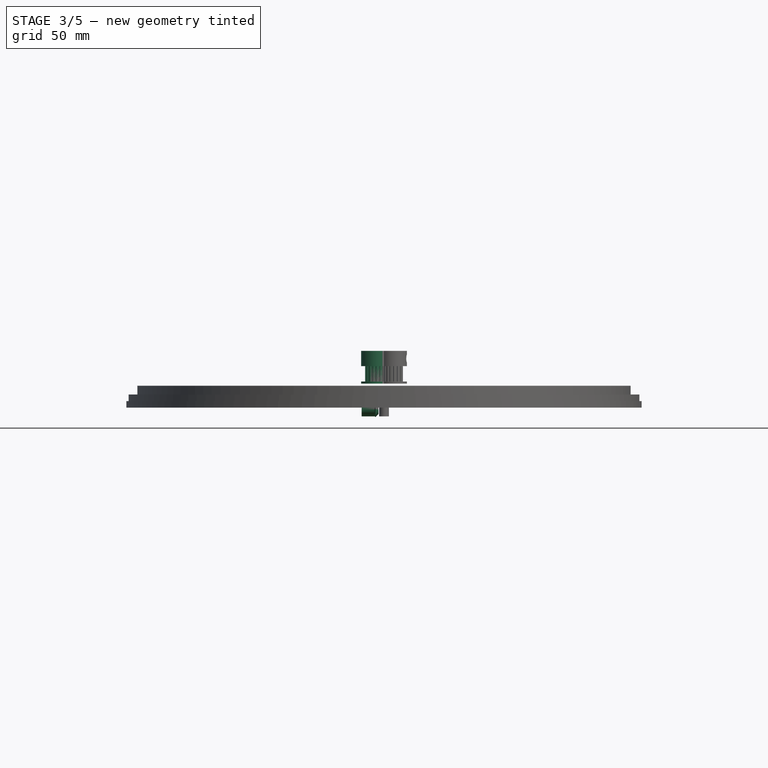
[diagram: stage 3 of 5 — front view after this stage's code; geometry added in this stage tinted green]
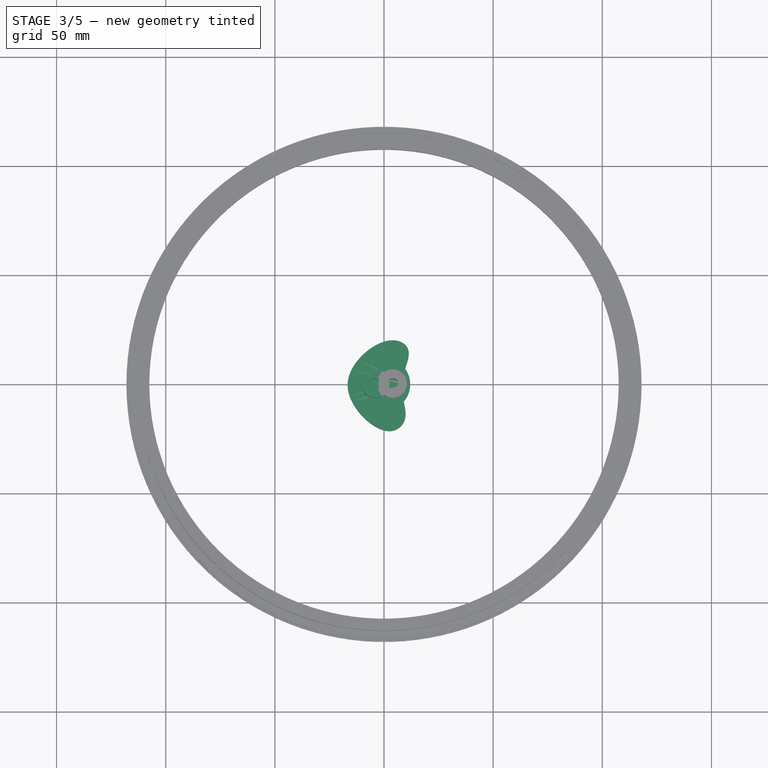
[diagram: stage 3 of 5 — top view after this stage's code; geometry added in this stage tinted green]
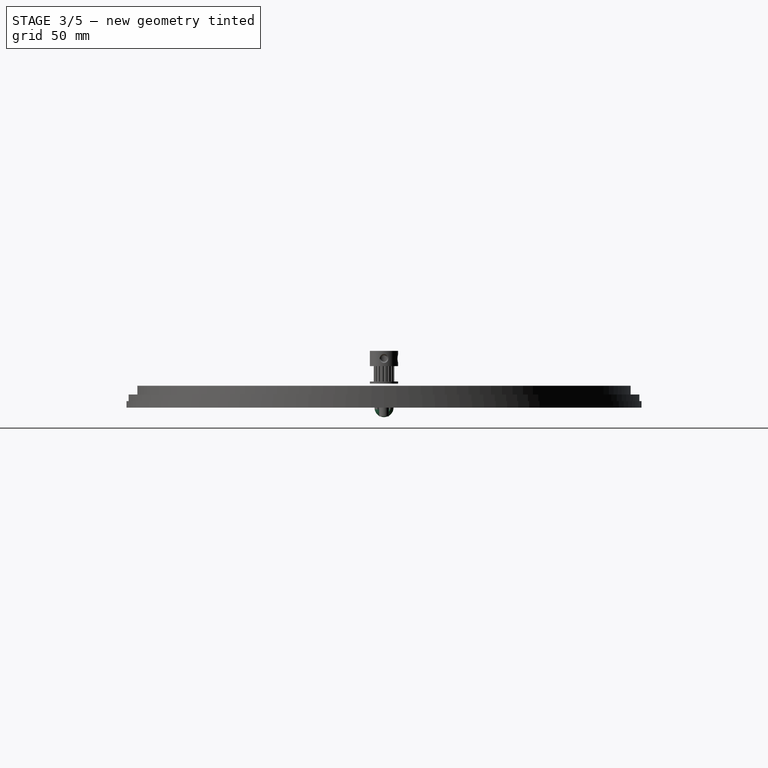
[diagram: stage 3 of 5 — right view after this stage's code; geometry added in this stage tinted green]
FEATURE [Sketcher::SketchObject] Sketch073
  FullyConstrained = true
  MapMode = 5
  Support = -> [XY_Plane075]
  sketch-geometry (2):
    g0: Circle CenterX=0 CenterY=0 CenterZ=0 NormalX=0 NormalY=0 NormalZ=1 AngleXU=0 Radius=12
    g1: Circle CenterX=0 CenterY=0 CenterZ=0 NormalX=0 NormalY=0 NormalZ=1 AngleXU=0 Radius=7.5
  constraints (4):
    c: Coincident(g0,g-1)
    c: Coincident(g1,g0)
    c: Diameter(g1) = 15  'dia_int·'
    c: Diameter(g0) = 24  'dia_ext'
FEATURE [PartDesign::Pad] Pad055
  Direction = (1,1,1)
  Length = 5
  Length2 = 100
  Profile = -> Sketch073
  Type = 0
FEATURE [PartDesign::Body] PocketBody
  Origin = -> Origin075
FEATURE [Sketcher::SketchObject] Sketch069
  FullyConstrained = true
  MapMode = 5
  Support = -> [XY_Plane072]
  sketch-geometry (7):
    g0: LineSegment StartX=-10.2642 StartY=4 StartZ=0 EndX=-4.26421 EndY=4 EndZ=0
    g1: LineSegment StartX=-4.26421 StartY=4 StartZ=0 EndX=-3.91421 EndY=4.35 EndZ=0
    g2: LineSegment StartX=-3.91421 StartY=4.35 StartZ=0 EndX=-2.5 EndY=2.93579 EndZ=0
    g3: LineSegment StartX=-2.5 StartY=2.93579 StartZ=0 EndX=-2.85 EndY=2.58579 EndZ=0
    g4: LineSegment StartX=-2.85 StartY=2.58579 StartZ=0 EndX=-2.85 EndY=1.5 EndZ=0
    g5: LineSegment StartX=-2.85 StartY=1.5 StartZ=0 EndX=-10.2642 EndY=1.5 EndZ=0
    g6: LineSegment StartX=-10.2642 StartY=1.5 StartZ=0 EndX=-10.2642 EndY=4 EndZ=0
  constraints (21):
    c: Horizontal(g0)
    c: Coincident(g0,g1)
    c: Coincident(g1,g2)
    c: Coincident(g2,g3)
    c: Coincident(g3,g4)
    c: Vertical(g4)
    c: Coincident(g4,g5)
    c: Horizontal(g5)
    c: Coincident(g5,g6)
    c: Coincident(g6,g0)
    c: Vertical(g6)
    c: DistanceX(g0,g0) = 6  'Lm'
    c: Parallel(g3,g1)
    c: Distance(g2) = 2  'F'
    c: Angle(g1,g0) = 2.35619
    c: DistanceY(g-1,g4) = 1.5  'bore'
    c: DistanceY(g-1,g0) = 4  'rm'
    c: DistanceY(g-1,g1) = 4.35
    c: Perpendicular(g1,g2)
    c: DistanceX(g2,g-1) = 2.5
    c: Equal(g3,g1)
FEATURE [Sketcher::SketchObject] Sketch074
  FullyConstrained = true
  MapMode = 5
  Support = -> [XY_Plane006]
  sketch-geometry (7):
    g0: LineSegment StartX=-10.2642 StartY=4 StartZ=0 EndX=-4.26421 EndY=4 EndZ=0
    g1: LineSegment StartX=-4.26421 StartY=4 StartZ=0 EndX=-3.91421 EndY=4.35 EndZ=0
    g2: LineSegment StartX=-3.91421 StartY=4.35 StartZ=0 EndX=-2.5 EndY=2.93579 EndZ=0
    g3: LineSegment StartX=-2.5 StartY=2.93579 StartZ=0 EndX=-2.85 EndY=2.58579 EndZ=0
    g4: LineSegment StartX=-2.85 StartY=2.58579 StartZ=0 EndX=-2.85 EndY=1.5 EndZ=0
    g5: LineSegment StartX=-2.85 StartY=1.5 StartZ=0 EndX=-10.2642 EndY=1.5 EndZ=0
    g6: LineSegment StartX=-10.2642 StartY=1.5 StartZ=0 EndX=-10.2642 EndY=4 EndZ=0
  constraints (21):
    c: Horizontal(g0)
    c: Coincident(g0,g1)
    c: Coincident(g1,g2)
    c: Coincident(g2,g3)
    c: Coincident(g3,g4)
    c: Vertical(g4)
    c: Coincident(g4,g5)
    c: Horizontal(g5)
    c: Coincident(g5,g6)
    c: Coincident(g6,g0)
    c: Vertical(g6)
    c: DistanceX(g0,g0) = 6  'Lm'
    c: Parallel(g3,g1)
    c: Distance(g2) = 2  'F'
    c: Angle(g1,g0) = 2.35619
    c: DistanceY(g-1,g4) = 1.5  'bore'
    c: DistanceY(g-1,g0) = 4  'rm'
    c: DistanceY(g-1,g1) = 4.35
    c: Perpendicular(g1,g2)
    c: DistanceX(g2,g-1) = 2.5
    c: Equal(g3,g1)
FEATURE [PartDesign::Revolution] Revolution002
  Angle = 360
  Axis = (1,0,0)
  Base = (0,0,0)
  Profile = -> Sketch074
  ReferenceAxis = -> X_Axis006
FEATURE [PartDesign::Body] Body049  label="bevel_x"
  Group = -> [Sketch074,Revolution002]
  Origin = -> Origin006
  Tip = -> Revolution002
FEATURE [PartDesign::Revolution] Revolution006
  Angle = 360
  Axis = (1,0,0)
  Base = (0,0,0)
  Profile = -> Sketch070
  ReferenceAxis = -> X_Axis070
FEATURE [PartDesign::Body] Body047  label="bevel_z001"
  Group = -> [Sketch070,Revolution006]
  Origin = -> Origin070
  Placement = pos=(0,0,0) rot=(0,0,1;1.5708rad)
  Tip = -> Revolution006
FEATURE [PartDesign::Revolution] Revolution005
  Angle = 360
  Axis = (1,0,0)
  Base = (0,0,0)
  Profile = -> Sketch069
  ReferenceAxis = -> X_Axis069
FEATURE [Sketcher::SketchObject] Sketch067
  FullyConstrained = false
  MapMode = 5
  Placement = pos=(7,0,3.5) rot=(0.57735,0.57735,0.57735;2.0944rad)
  sketch-geometry (1):
    g0: Circle CenterX=0 CenterY=0 CenterZ=0 NormalX=0 NormalY=0 NormalZ=1 AngleXU=0 Radius=1.5
  constraints (2):
    c: Coincident(g0,g-1)
    c: Radius(g0) = 1.5
FEATURE [PartDesign::Pad] Pad052
  AllowMultiFace = false
  Direction = (1,1,1)
  Length = 8
  Length2 = 100
  Placement = pos=(7,0,3.5) rot=(0.57735,0.57735,0.57735;2.0944rad)
  Profile = -> Sketch067
  Reversed = true
  Type = 0
FEATURE [PartDesign::Body] Body050  label="roulement_15_24_5"
  Group = -> [Sketch073,Pad055]
  Origin = -> Origin073
  Placement = pos=(-4,0,20.1) rot=(0,0,1;0rad)
  Tip = -> Pad055
FEATURE [Sketcher::SketchObject] Sketch075
  FullyConstrained = false
  MapMode = 5
  Placement = pos=(0,0,5) rot=(0,0,1;0rad)
  Support = -> [CopyPad055]
  sketch-geometry (15):
    g0: GeomPoint X=-2.07524 Y=20.0264 Z=0
    g1-g6: Circle x6 (B-spline internal-alignment scaffolding for g7; pole/knot coordinates omitted)
    g7: BSplineCurve PolesCount=6 KnotsCount=7 Degree=3 IsPeriodic=1
    g8-g14: GeomPoint x7 (B-spline internal-alignment scaffolding for g7; pole/knot coordinates omitted)
  constraints (14):
    c: PointOnObject(g1,g-1)
    c: Weight(g1) = 1
    c: Equal(g1,g2)
    c: PointOnObject(g2,g-2)
    c: Equal(g1,g3)
    c: Equal(g1,g4)
    c: PointOnObject(g4,g-1)
    c: Equal(g1,g5)
    c: Equal(g1,g6)
    c: PointOnObject(g6,g-2)
    c: InternalAlignment(g1-g6 -> g7) x6
    c: InternalAlignment(g8-g14 -> g7) x7
    c: DistanceX(g-1,g10) = 8.01938
    c: DistanceX(g1,g-1) = 25
FEATURE [PartDesign::Pad] Pad056
  Direction = (1,1,1)
  Length = 5
  Length2 = 100
  Placement = pos=(0,0,5) rot=(0,0,1;0rad)
  Profile = -> Sketch075
  Type = 0
FEATURE [Part::Cut] Cut003
  Base = -> Pocket002
  Tool = -> Pad051
FEATURE [App::Part] Part017  label="bevel_gears001"
  Group = -> [Body046,Body047]
  Origin = -> Origin067
  Placement = pos=(-14.5,0,0) rot=(1,0,0;-1.5708rad)
FEATURE [Part::Cut] Cut004
  Base = -> Cut003
  Tool = -> Pad052
FEATURE [PartDesign::Chamfer] Chamfer002
  Angle = 45
  Base = -> Cut004 [Edge11,Edge10,Edge8,Edge9,Edge4,Edge5]
  ChamferType = 0
  FlipDirection = false
  Size = 0.5
  Size2 = 1
  SupportTransform = false
FEATURE [PartDesign::Chamfer] Chamfer003
  Angle = 45
  Base = -> Chamfer002 [Edge22]
  ChamferType = 0
  FlipDirection = false
  Size = 0.5
  Size2 = 1
  SupportTransform = false
FEATURE [PartDesign::Revolution] Revolution007
  Angle = 360
  Axis = (1,0,0)
  Base = (0,0,0)
  Profile = -> Sketch007
  ReferenceAxis = -> X_Axis007
FEATURE [PartDesign::Body] Body005  label="bevel_z"
  Group = -> [Sketch007,Revolution007]
  Origin = -> Origin007
  Placement = pos=(0,0,0) rot=(0,0,1;1.5708rad)
  Tip = -> Revolution007
FEATURE [App::Part] Part009  label="bevel_gears"
  Group = -> [Body049,Body005]
  Origin = -> Origin056
  Placement = pos=(4,0,0) rot=(1,0,0;-1.5708rad)
FEATURE [Sketcher::SketchObject] Sketch068
  FullyConstrained = false
  MapMode = 5
  Placement = pos=(0,0,14) rot=(0,0,1;0rad)
  sketch-geometry (16):
    g0: Circle CenterX=0 CenterY=4.7 CenterZ=0 NormalX=0 NormalY=0 NormalZ=1 AngleXU=0 Radius=0.5
    g1: Circle CenterX=0 CenterY=-4.7 CenterZ=0 NormalX=0 NormalY=0 NormalZ=1 AngleXU=0 Radius=0.5
    g2: Circle CenterX=4.7 CenterY=0 CenterZ=0 NormalX=0 NormalY=0 NormalZ=1 AngleXU=0 Radius=0.5
    g3: Circle CenterX=-4.7 CenterY=0 CenterZ=0 NormalX=0 NormalY=0 NormalZ=1 AngleXU=0 Radius=0.5
    g4: Circle CenterX=-3.3234 CenterY=3.3234 CenterZ=0 NormalX=0 NormalY=0 NormalZ=1 AngleXU=0 Radius=0.5
    g5: Circle CenterX=3.3234 CenterY=3.3234 CenterZ=0 NormalX=0 NormalY=0 NormalZ=1 AngleXU=0 Radius=0.5
    g6: Circle CenterX=-3.3234 CenterY=-3.3234 CenterZ=0 NormalX=0 NormalY=0 NormalZ=1 AngleXU=0 Radius=0.5
    g7: Circle CenterX=3.3234 CenterY=-3.3234 CenterZ=0 NormalX=0 NormalY=0 NormalZ=1 AngleXU=0 Radius=0.5
    g8: Circle CenterX=-1.79861 CenterY=4.34223 CenterZ=0 NormalX=0 NormalY=0 NormalZ=1 AngleXU=0 Radius=0.5
    g9: Circle CenterX=1.79861 CenterY=4.34223 CenterZ=0 NormalX=0 NormalY=0 NormalZ=1 AngleXU=0 Radius=0.5
    g10: Circle CenterX=4.34223 CenterY=1.79861 CenterZ=0 NormalX=0 NormalY=0 NormalZ=1 AngleXU=0 Radius=0.5
    g11: Circle CenterX=4.34223 CenterY=-1.79861 CenterZ=0 NormalX=0 NormalY=0 NormalZ=1 AngleXU=0 Radius=0.5
    g12: Circle CenterX=1.79861 CenterY=-4.34223 CenterZ=0 NormalX=0 NormalY=0 NormalZ=1 AngleXU=0 Radius=0.5
    g13: Circle CenterX=-1.79861 CenterY=-4.34223 CenterZ=0 NormalX=0 NormalY=0 NormalZ=1 AngleXU=0 Radius=0.5
    g14: Circle CenterX=-4.34223 CenterY=-1.79861 CenterZ=0 NormalX=0 NormalY=0 NormalZ=1 AngleXU=0 Radius=0.5
    g15: Circle CenterX=-4.31471 CenterY=1.86367 CenterZ=0 NormalX=0 NormalY=0 NormalZ=1 AngleXU=0 Radius=0.5
  constraints (16):
    c: Radius(g0) = 0.5
    c: Equal(g0,g8)
    c: Equal(g8,g4)
    c: Equal(g4,g15)
    c: Equal(g15,g3)
    c: Equal(g3,g14)
    c: Equal(g14,g6)
    c: Equal(g6,g13)
    c: Equal(g13,g1)
    c: Equal(g1,g12)
    c: Equal(g12,g7)
    c: Equal(g7,g11)
    c: Equal(g11,g2)
    c: Equal(g2,g10)
    c: Equal(g10,g5)
    c: Equal(g5,g9)
FEATURE [PartDesign::Pad] Pad053
  AllowMultiFace = false
  Direction = (1,1,1)
  Length = 7
  Length2 = 100
  Placement = pos=(0,0,14) rot=(0,0,1;0rad)
  Profile = -> Sketch068
  Reversed = true
  Type = 0
FEATURE [Part::Cut] Cut005  label="GT1_pulley001"
  Base = -> Chamfer003
  Placement = pos=(-4,0,26) rot=(1,0,0;3.14159rad)
  Tool = -> Pad053
FEATURE [PartDesign::FeaturePython] InvoluteGear001  # WARN: FeaturePython — macro-defined, semantics opaque (R4)
  AttacherType = Attacher::AttachEngine3D
  BaseFeature = -> Hole
  angular_backlash = 0
  backlash = 0
  beta = 0
  clearance = 0.25
  da = 7
  df = 4.75
  double_helix = false
  dw = 6
  head = 0
  head_fillet = 0
  height = 3
  module = 0.5
  numpoints = 6
  pressure_angle = 20
  properties_from_tool = false
  reversed_backlash = false
  root_fillet = 0
  shift = 0
  simple = false
  teeth = 12
  transverse_pitch = 1.5708
  undercut = false
  version = 0.0.4
  expr: dw = teeth * module
  expr: angular_backlash = backlash / dw * 360° / pi
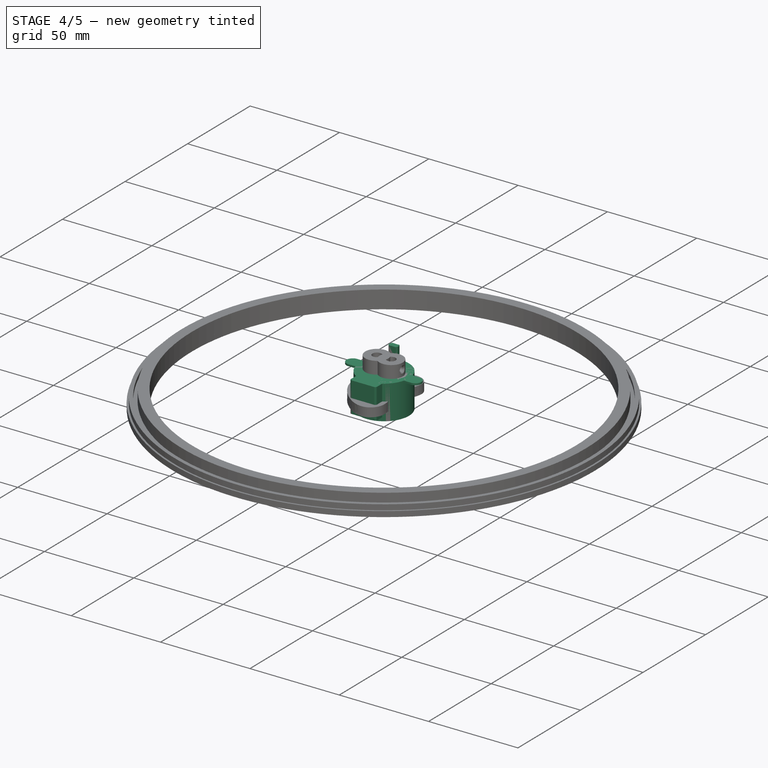
[diagram: stage 4 of 5 — iso view after this stage's code; geometry added in this stage tinted green]
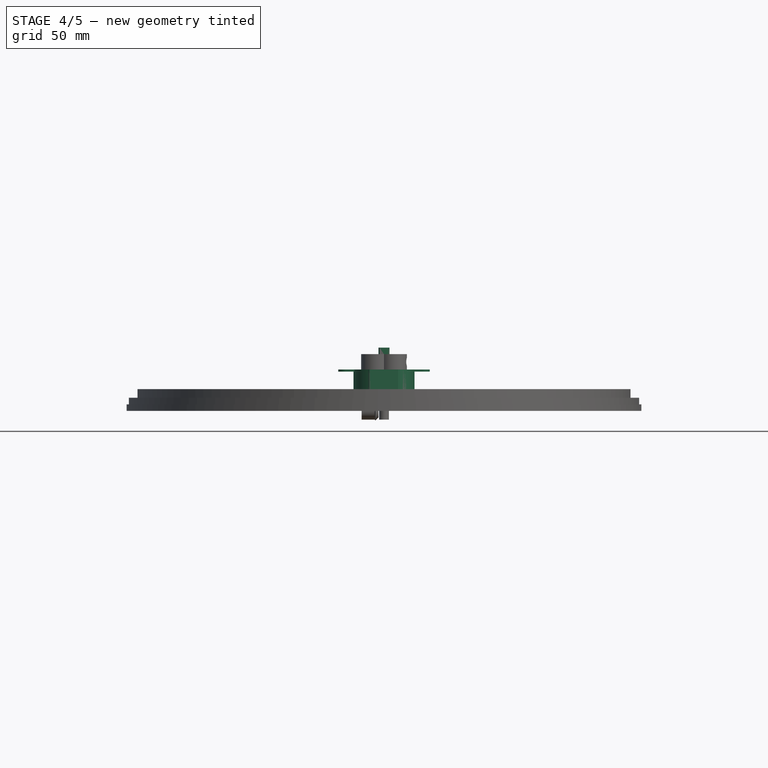
[diagram: stage 4 of 5 — front view after this stage's code; geometry added in this stage tinted green]
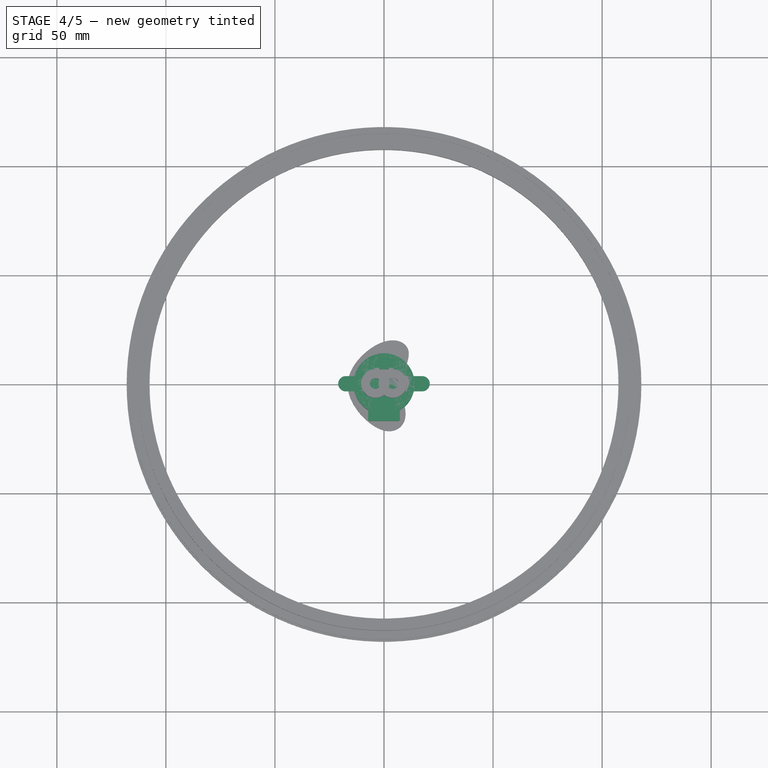
[diagram: stage 4 of 5 — top view after this stage's code; geometry added in this stage tinted green]
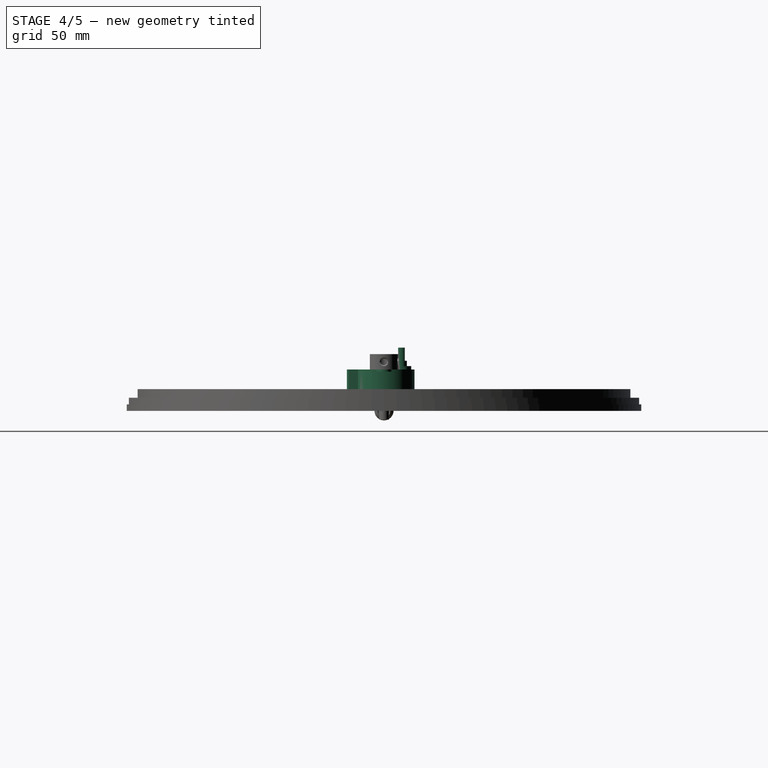
[diagram: stage 4 of 5 — right view after this stage's code; geometry added in this stage tinted green]
FEATURE [PartDesign::Body] Body032
  Group = -> [Sketch035,Pad025,Sketch036,Pad026,Sketch002,Pad002,Sketch003,Pad003]
  Origin = -> Origin035
  Tip = -> Pad003
FEATURE [PartDesign::ShapeBinder] CopyPad003
  TraceSupport = false
FEATURE [Sketcher::SketchObject] Sketch037
  FullyConstrained = true
  MapMode = 5
  Placement = pos=(0,0,19) rot=(0,0,1;0rad)
  Support = -> [CopyPad003]
  sketch-geometry (8):
    g0: ArcOfCircle CenterX=0 CenterY=0 CenterZ=0 NormalX=0 NormalY=0 NormalZ=1 AngleXU=0 Radius=14 StartAngle=3.39427 EndAngle=6.03051
    g1: ArcOfCircle CenterX=0 CenterY=0 CenterZ=0 NormalX=0 NormalY=0 NormalZ=1 AngleXU=0 Radius=14 StartAngle=0.25268 EndAngle=2.88891
    g2: LineSegment StartX=-13.5554 StartY=3.5 StartZ=0 EndX=-17.5 EndY=3.5 EndZ=0
    g3: LineSegment StartX=-13.5554 StartY=-3.5 StartZ=0 EndX=-17.5 EndY=-3.5 EndZ=0
    g4: LineSegment StartX=13.5554 StartY=-3.5 StartZ=0 EndX=17.5 EndY=-3.5 EndZ=0
    g5: LineSegment StartX=13.5554 StartY=3.5 StartZ=0 EndX=17.5 EndY=3.5 EndZ=0
    g6: ArcOfCircle CenterX=17.5 CenterY=0 CenterZ=0 NormalX=0 NormalY=0 NormalZ=1 AngleXU=0 Radius=3.5 StartAngle=4.71239 EndAngle=7.85398
    g7: ArcOfCircle CenterX=-17.5 CenterY=0 CenterZ=0 NormalX=0 NormalY=0 NormalZ=1 AngleXU=0 Radius=3.5 StartAngle=1.5708 EndAngle=4.71239
  constraints (21):
    c: Coincident(g0,g-1)
    c: Coincident(g1,g0)
    c: Coincident(g2,g1)
    c: Horizontal(g2)
    c: Coincident(g3,g0)
    c: Coincident(g4,g0)
    c: Horizontal(g4)
    c: Coincident(g5,g1)
    c: Horizontal(g5)
    c: PointOnObject(g6,g-1)
    c: Horizontal(g3)
    c: Radius(g1) = 14
    c: Radius(g0) = 14
    c: Diameter(g7) = 7
    c: Diameter(g6) = 7
    c: DistanceX(g7,g6) = 35
    c: Tangent(g6,g5) = 1.5708
    c: Tangent(g6,g4) = -1.5708
    c: Tangent(g7,g3) = 1.5708
    c: Tangent(g7,g2) = -1.5708
    c: Symmetric(g6,g7,g-2)
FEATURE [PartDesign::Pad] Pad028
  Direction = (1,1,1)
  Length = 1
  Length2 = 100
  Profile = -> Sketch037
  Reversed = true
  Type = 0
FEATURE [PartDesign::Body] Body033
  Group = -> [CopyPad003,Sketch037,Pad028,Sketch038,Hole001,Sketch006,Pad027]
  Origin = -> Origin036
  Tip = -> Pad027
FEATURE [App::Part] Part003  label="28BYJ_latitude"
  Group = -> [Body033,Body032]
  Origin = -> Origin002
  Placement = pos=(142,-40,22) rot=(-0.707107,0.707107,0;3.14159rad)
FEATURE [Sketcher::SketchObject] Sketch041
  FullyConstrained = true
  MapMode = 5
  Support = -> [XY_Plane039]
  sketch-geometry (1):
    g0: Circle CenterX=0 CenterY=0 CenterZ=0 NormalX=0 NormalY=0 NormalZ=1 AngleXU=0 Radius=14
  constraints (2):
    c: Coincident(g0,g-1)
    c: Diameter(g0) = 28  'motor_dia'
FEATURE [PartDesign::Pad] Pad031
  Direction = (1,1,1)
  Length = 19
  Length2 = 100
  Profile = -> Sketch041
  Type = 0
FEATURE [Sketcher::SketchObject] Sketch042
  FullyConstrained = true
  MapMode = 5
  Placement = pos=(0,0,19) rot=(0,0,1;0rad)
  Support = -> [Pad031]
  sketch-geometry (1):
    g0: Circle CenterX=0 CenterY=8 CenterZ=0 NormalX=0 NormalY=0 NormalZ=1 AngleXU=0 Radius=4.5
  constraints (3):
    c: PointOnObject(g0,g-2)
    c: DistanceY(g-1,g0) = 8
    c: Diameter(g0) = 9
FEATURE [PartDesign::Pad] Pad032
  BaseFeature = -> Pad031
  Direction = (1,1,1)
  Length = 1.5
  Length2 = 100
  Profile = -> Sketch042
  Type = 0
FEATURE [Sketcher::SketchObject] Sketch040
  FullyConstrained = true
  MapMode = 5
  Placement = pos=(0,0,20.5) rot=(0,0,1;0rad)
  Support = -> [Pad032]
  sketch-geometry (1):
    g0: Circle CenterX=0 CenterY=8 CenterZ=0 NormalX=0 NormalY=0 NormalZ=1 AngleXU=0 Radius=2.5
  constraints (3):
    c: Vertical(g0,g-1)
    c: DistanceY(g-1,g0) = 8
    c: Diameter(g0) = 5
FEATURE [PartDesign::Pad] Pad029
  BaseFeature = -> Pad032
  Direction = (1,1,1)
  Length = 2.5
  Length2 = 100
  Profile = -> Sketch040
  Type = 0
FEATURE [Sketcher::SketchObject] Sketch039
  FullyConstrained = true
  MapMode = 5
  Placement = pos=(0,0,23) rot=(0,0,1;0rad)
  Support = -> [Pad029]
  sketch-geometry (4):
    g0: LineSegment StartX=-2 StartY=9.5 StartZ=0 EndX=2 EndY=9.5 EndZ=0
    g1: LineSegment StartX=-2 StartY=6.5 StartZ=0 EndX=2 EndY=6.5 EndZ=0
    g2: ArcOfCircle CenterX=0 CenterY=8 CenterZ=0 NormalX=0 NormalY=0 NormalZ=1 AngleXU=0 Radius=2.5 StartAngle=5.63968 EndAngle=6.92669
    g3: ArcOfCircle CenterX=0 CenterY=8 CenterZ=0 NormalX=0 NormalY=0 NormalZ=1 AngleXU=0 Radius=2.5 StartAngle=2.49809 EndAngle=3.78509
  constraints (13):
    c: Horizontal(g1)
    c: PointOnObject(g2,g-2)
    c: Coincident(g2,g0)
    c: Coincident(g2,g1)
    c: Coincident(g3,g2)
    c: Coincident(g3,g0)
    c: Coincident(g3,g1)
    c: Diameter(g3) = 5
    c: Diameter(g2) = 5
    c: Horizontal(g0)
    c: DistanceY(g1,g0) = 3
    c: DistanceY(g-1,g2) = 8
    c: DistanceY(g1,g2) = 1.5
FEATURE [PartDesign::Pad] Pad030
  BaseFeature = -> Pad029
  Direction = (1,1,1)
  Length = 6
  Length2 = 100
  Profile = -> Sketch039
  Type = 0
FEATURE [PartDesign::Body] Body034
  Group = -> [Sketch041,Pad031,Sketch042,Pad032,Sketch040,Pad029,Sketch039,Pad030]
  Origin = -> Origin037
  Tip = -> Pad030
FEATURE [PartDesign::ShapeBinder] CopyPad004
  TraceSupport = false
FEATURE [Sketcher::SketchObject] Sketch044
  FullyConstrained = true
  MapMode = 5
  Placement = pos=(0,0,19) rot=(0,0,1;0rad)
  Support = -> [CopyPad004]
  sketch-geometry (8):
    g0: ArcOfCircle CenterX=0 CenterY=0 CenterZ=0 NormalX=0 NormalY=0 NormalZ=1 AngleXU=0 Radius=14 StartAngle=3.39427 EndAngle=6.03051
    g1: ArcOfCircle CenterX=0 CenterY=0 CenterZ=0 NormalX=0 NormalY=0 NormalZ=1 AngleXU=0 Radius=14 StartAngle=0.25268 EndAngle=2.88891
    g2: LineSegment StartX=-13.5554 StartY=3.5 StartZ=0 EndX=-17.5 EndY=3.5 EndZ=0
    g3: LineSegment StartX=-13.5554 StartY=-3.5 StartZ=0 EndX=-17.5 EndY=-3.5 EndZ=0
    g4: LineSegment StartX=13.5554 StartY=-3.5 StartZ=0 EndX=17.5 EndY=-3.5 EndZ=0
    g5: LineSegment StartX=13.5554 StartY=3.5 StartZ=0 EndX=17.5 EndY=3.5 EndZ=0
    g6: ArcOfCircle CenterX=17.5 CenterY=0 CenterZ=0 NormalX=0 NormalY=0 NormalZ=1 AngleXU=0 Radius=3.5 StartAngle=4.71239 EndAngle=7.85398
    g7: ArcOfCircle CenterX=-17.5 CenterY=0 CenterZ=0 NormalX=0 NormalY=0 NormalZ=1 AngleXU=0 Radius=3.5 StartAngle=1.5708 EndAngle=4.71239
  constraints (21):
    c: Coincident(g0,g-1)
    c: Coincident(g1,g0)
    c: Coincident(g2,g1)
    c: Horizontal(g2)
    c: Coincident(g3,g0)
    c: Coincident(g4,g0)
    c: Horizontal(g4)
    c: Coincident(g5,g1)
    c: Horizontal(g5)
    c: PointOnObject(g6,g-1)
    c: Horizontal(g3)
    c: Radius(g1) = 14
    c: Radius(g0) = 14
    c: Diameter(g7) = 7
    c: Diameter(g6) = 7
    c: DistanceX(g7,g6) = 35
    c: Tangent(g6,g5) = 1.5708
    c: Tangent(g6,g4) = -1.5708
    c: Tangent(g7,g3) = 1.5708
    c: Tangent(g7,g2) = -1.5708
    c: Symmetric(g6,g7,g-2)
FEATURE [PartDesign::Pad] Pad034
  Direction = (1,1,1)
  Length = 1
  Length2 = 100
  Profile = -> Sketch044
  Reversed = true
  Type = 0
FEATURE [Sketcher::SketchObject] Sketch045
  FullyConstrained = true
  MapMode = 5
  Placement = pos=(0,0,19) rot=(0,0,1;0rad)
  Support = -> [Pad034]
  sketch-geometry (2):
    g0: Circle CenterX=-17.5 CenterY=0 CenterZ=0 NormalX=0 NormalY=0 NormalZ=1 AngleXU=0 Radius=2.1
    g1: Circle CenterX=17.5 CenterY=0 CenterZ=0 NormalX=0 NormalY=0 NormalZ=1 AngleXU=0 Radius=2.1
  constraints (5):
    c: PointOnObject(g0,g-1)
    c: Diameter(g0) = 4.2
    c: Diameter(g1) = 4.2
    c: DistanceX(g0,g1) = 35
    c: Symmetric(g1,g0,g-2)
FEATURE [PartDesign::Hole] Hole002
  BaseFeature = -> Pad034
  Depth = 25
  DepthType = 0
  Diameter = 4.2
  DrillForDepth = false
  DrillPoint = 1
  DrillPointAngle = 118
  HoleCutCountersinkAngle = 90
  HoleCutCustomValues = false
  HoleCutDepth = 0
  HoleCutDiameter = 6.1
  HoleCutType = 0
  ModelActualThread = false
  Profile = -> Sketch045
  Tapered = false
  TaperedAngle = 90
  ThreadAngle = 0
  ThreadClass = 0
  ThreadCutOffInner = 0
  ThreadCutOffOuter = 0
  ThreadDirection = 0
  ThreadFit = 0
  ThreadPitch = 0
  ThreadSize = 0
  ThreadType = 0
  Threaded = false
FEATURE [Sketcher::SketchObject] Sketch043
  FullyConstrained = true
  MapMode = 5
  Placement = pos=(0,0,19) rot=(0,0,1;0rad)
  Support = -> [Hole002]
  sketch-geometry (6):
    g0: LineSegment StartX=-7.3 StartY=-11 StartZ=0 EndX=7.3 EndY=-11 EndZ=0
    g1: LineSegment StartX=7.3 StartY=-11 StartZ=0 EndX=7.3 EndY=-16 EndZ=0
    g2: LineSegment StartX=6.3 StartY=-17 StartZ=0 EndX=-6.3 EndY=-17 EndZ=0
    g3: LineSegment StartX=-7.3 StartY=-16 StartZ=0 EndX=-7.3 EndY=-11 EndZ=0
    g4: ArcOfCircle CenterX=-6.3 CenterY=-16 CenterZ=0 NormalX=0 NormalY=0 NormalZ=1 AngleXU=0 Radius=1 StartAngle=3.14159 EndAngle=4.71239
    g5: ArcOfCircle CenterX=6.3 CenterY=-16 CenterZ=0 NormalX=0 NormalY=0 NormalZ=1 AngleXU=0 Radius=1 StartAngle=4.71239 EndAngle=6.28319
  constraints (15):
    c: Coincident(g0,g1)
    c: Coincident(g3,g0)
    c: Horizontal(g0)
    c: Vertical(g1)
    c: Vertical(g3)
    c: Tangent(g3,g4) = 1.5708
    c: Tangent(g2,g4) = 1.5708
    c: Tangent(g1,g5) = 1.5708
    c: Tangent(g2,g5) = 1.5708
    c: Radius(g4) = 1
    c: Radius(g5) = 1
    c: DistanceY(g2,g0) = 6
    c: Symmetric(g1,g3,g-2)
    c: DistanceY(g2,g-1) = 17
    c: DistanceX(g3,g1) = 14.6
FEATURE [PartDesign::Pad] Pad033
  BaseFeature = -> Hole002
  Direction = (1,1,1)
  Length = 17
  Length2 = 100
  Profile = -> Sketch043
  Reversed = true
  Type = 0
FEATURE [PartDesign::Body] Body035
  Group = -> [CopyPad004,Sketch044,Pad034,Sketch045,Hole002,Sketch043,Pad033]
  Origin = -> Origin038
  Tip = -> Pad033
FEATURE [App::Part] Part004  label="28BYJ_longitude"
  Group = -> [Body035,Body034]
  Origin = -> Origin039
  Placement = pos=(142,45,-18) rot=(0,0,1;1.5708rad)
FEATURE [Sketcher::SketchObject] Sketch048
  FullyConstrained = true
  MapMode = 5
  Support = -> [XY_Plane042]
  sketch-geometry (1):
    g0: Circle CenterX=0 CenterY=0 CenterZ=0 NormalX=0 NormalY=0 NormalZ=1 AngleXU=0 Radius=14
  constraints (2):
    c: Coincident(g0,g-1)
    c: Diameter(g0) = 28  'motor_dia'
FEATURE [PartDesign::Pad] Pad037
  Direction = (1,1,1)
  Length = 19
  Length2 = 100
  Profile = -> Sketch048
  Type = 0
FEATURE [Sketcher::SketchObject] Sketch049
  FullyConstrained = true
  MapMode = 5
  Placement = pos=(0,0,19) rot=(0,0,1;0rad)
  Support = -> [Pad037]
  sketch-geometry (1):
    g0: Circle CenterX=0 CenterY=8 CenterZ=0 NormalX=0 NormalY=0 NormalZ=1 AngleXU=0 Radius=4.5
  constraints (3):
    c: PointOnObject(g0,g-2)
    c: DistanceY(g-1,g0) = 8
    c: Diameter(g0) = 9
FEATURE [PartDesign::Pad] Pad038
  BaseFeature = -> Pad037
  Direction = (1,1,1)
  Length = 1.5
  Length2 = 100
  Profile = -> Sketch049
  Type = 0
FEATURE [Sketcher::SketchObject] Sketch046
  FullyConstrained = true
  MapMode = 5
  Placement = pos=(0,0,20.5) rot=(0,0,1;0rad)
  Support = -> [Pad038]
  sketch-geometry (1):
    g0: Circle CenterX=0 CenterY=8 CenterZ=0 NormalX=0 NormalY=0 NormalZ=1 AngleXU=0 Radius=2.5
  constraints (3):
    c: Vertical(g0,g-1)
    c: DistanceY(g-1,g0) = 8
    c: Diameter(g0) = 5
FEATURE [PartDesign::Pad] Pad036
  BaseFeature = -> Pad038
  Direction = (1,1,1)
  Length = 2.5
  Length2 = 100
  Profile = -> Sketch046
  Type = 0
FEATURE [Sketcher::SketchObject] Sketch047
  FullyConstrained = true
  MapMode = 5
  Placement = pos=(0,0,23) rot=(0,0,1;0rad)
  Support = -> [Pad036]
  sketch-geometry (4):
    g0: LineSegment StartX=-2 StartY=9.5 StartZ=0 EndX=2 EndY=9.5 EndZ=0
    g1: LineSegment StartX=-2 StartY=6.5 StartZ=0 EndX=2 EndY=6.5 EndZ=0
    g2: ArcOfCircle CenterX=0 CenterY=8 CenterZ=0 NormalX=0 NormalY=0 NormalZ=1 AngleXU=0 Radius=2.5 StartAngle=5.63968 EndAngle=6.92669
    g3: ArcOfCircle CenterX=0 CenterY=8 CenterZ=0 NormalX=0 NormalY=0 NormalZ=1 AngleXU=0 Radius=2.5 StartAngle=2.49809 EndAngle=3.78509
  constraints (13):
    c: Horizontal(g1)
    c: PointOnObject(g2,g-2)
    c: Coincident(g2,g0)
    c: Coincident(g2,g1)
    c: Coincident(g3,g2)
    c: Coincident(g3,g0)
    c: Coincident(g3,g1)
    c: Diameter(g3) = 5
    c: Diameter(g2) = 5
    c: Horizontal(g0)
    c: DistanceY(g1,g0) = 3
    c: DistanceY(g-1,g2) = 8
    c: DistanceY(g1,g2) = 1.5
FEATURE [PartDesign::Pad] Pad035
  BaseFeature = -> Pad036
  Direction = (1,1,1)
  Length = 6
  Length2 = 100
  Profile = -> Sketch047
  Type = 0
FEATURE [PartDesign::Body] Body036
  Group = -> [Sketch048,Pad037,Sketch049,Pad038,Sketch046,Pad036,Sketch047,Pad035]
  Origin = -> Origin040
  Tip = -> Pad035
FEATURE [PartDesign::ShapeBinder] CopyPad005
  TraceSupport = false
FEATURE [Sketcher::SketchObject] Sketch051
  FullyConstrained = true
  MapMode = 5
  Placement = pos=(0,0,19) rot=(0,0,1;0rad)
  Support = -> [CopyPad005]
  sketch-geometry (8):
    g0: ArcOfCircle CenterX=0 CenterY=0 CenterZ=0 NormalX=0 NormalY=0 NormalZ=1 AngleXU=0 Radius=14 StartAngle=3.39427 EndAngle=6.03051
    g1: ArcOfCircle CenterX=0 CenterY=0 CenterZ=0 NormalX=0 NormalY=0 NormalZ=1 AngleXU=0 Radius=14 StartAngle=0.25268 EndAngle=2.88891
    g2: LineSegment StartX=-13.5554 StartY=3.5 StartZ=0 EndX=-17.5 EndY=3.5 EndZ=0
    g3: LineSegment StartX=-13.5554 StartY=-3.5 StartZ=0 EndX=-17.5 EndY=-3.5 EndZ=0
    g4: LineSegment StartX=13.5554 StartY=-3.5 StartZ=0 EndX=17.5 EndY=-3.5 EndZ=0
    g5: LineSegment StartX=13.5554 StartY=3.5 StartZ=0 EndX=17.5 EndY=3.5 EndZ=0
    g6: ArcOfCircle CenterX=17.5 CenterY=0 CenterZ=0 NormalX=0 NormalY=0 NormalZ=1 AngleXU=0 Radius=3.5 StartAngle=4.71239 EndAngle=7.85398
    g7: ArcOfCircle CenterX=-17.5 CenterY=0 CenterZ=0 NormalX=0 NormalY=0 NormalZ=1 AngleXU=0 Radius=3.5 StartAngle=1.5708 EndAngle=4.71239
  constraints (21):
    c: Coincident(g0,g-1)
    c: Coincident(g1,g0)
    c: Coincident(g2,g1)
    c: Horizontal(g2)
    c: Coincident(g3,g0)
    c: Coincident(g4,g0)
    c: Horizontal(g4)
    c: Coincident(g5,g1)
    c: Horizontal(g5)
    c: PointOnObject(g6,g-1)
    c: Horizontal(g3)
    c: Radius(g1) = 14
    c: Radius(g0) = 14
    c: Diameter(g7) = 7
    c: Diameter(g6) = 7
    c: DistanceX(g7,g6) = 35
    c: Tangent(g6,g5) = 1.5708
    c: Tangent(g6,g4) = -1.5708
    c: Tangent(g7,g3) = 1.5708
    c: Tangent(g7,g2) = -1.5708
    c: Symmetric(g6,g7,g-2)
FEATURE [PartDesign::Pad] Pad040
  Direction = (1,1,1)
  Length = 1
  Length2 = 100
  Profile = -> Sketch051
  Reversed = true
  Type = 0
FEATURE [Sketcher::SketchObject] Sketch052
  FullyConstrained = true
  MapMode = 5
  Placement = pos=(0,0,19) rot=(0,0,1;0rad)
  Support = -> [Pad040]
  sketch-geometry (2):
    g0: Circle CenterX=-17.5 CenterY=0 CenterZ=0 NormalX=0 NormalY=0 NormalZ=1 AngleXU=0 Radius=2.1
    g1: Circle CenterX=17.5 CenterY=0 CenterZ=0 NormalX=0 NormalY=0 NormalZ=1 AngleXU=0 Radius=2.1
  constraints (5):
    c: PointOnObject(g0,g-1)
    c: Diameter(g0) = 4.2
    c: Diameter(g1) = 4.2
    c: DistanceX(g0,g1) = 35
    c: Symmetric(g1,g0,g-2)
FEATURE [PartDesign::Hole] Hole003
  BaseFeature = -> Pad040
  Depth = 25
  DepthType = 0
  Diameter = 4.2
  DrillForDepth = false
  DrillPoint = 1
  DrillPointAngle = 118
  HoleCutCountersinkAngle = 90
  HoleCutCustomValues = false
  HoleCutDepth = 0
  HoleCutDiameter = 6.1
  HoleCutType = 0
  ModelActualThread = false
  Profile = -> Sketch052
  Tapered = false
  TaperedAngle = 90
  ThreadAngle = 0
  ThreadClass = 0
  ThreadCutOffInner = 0
  ThreadCutOffOuter = 0
  ThreadDirection = 0
  ThreadFit = 0
  ThreadPitch = 0
  ThreadSize = 0
  ThreadType = 0
  Threaded = false
FEATURE [Sketcher::SketchObject] Sketch050
  FullyConstrained = true
  MapMode = 5
  Placement = pos=(0,0,19) rot=(0,0,1;0rad)
  Support = -> [Hole003]
  sketch-geometry (6):
    g0: LineSegment StartX=-7.3 StartY=-11 StartZ=0 EndX=7.3 EndY=-11 EndZ=0
    g1: LineSegment StartX=7.3 StartY=-11 StartZ=0 EndX=7.3 EndY=-16 EndZ=0
    g2: LineSegment StartX=6.3 StartY=-17 StartZ=0 EndX=-6.3 EndY=-17 EndZ=0
    g3: LineSegment StartX=-7.3 StartY=-16 StartZ=0 EndX=-7.3 EndY=-11 EndZ=0
    g4: ArcOfCircle CenterX=-6.3 CenterY=-16 CenterZ=0 NormalX=0 NormalY=0 NormalZ=1 AngleXU=0 Radius=1 StartAngle=3.14159 EndAngle=4.71239
    g5: ArcOfCircle CenterX=6.3 CenterY=-16 CenterZ=0 NormalX=0 NormalY=0 NormalZ=1 AngleXU=0 Radius=1 StartAngle=4.71239 EndAngle=6.28319
  constraints (15):
    c: Coincident(g0,g1)
    c: Coincident(g3,g0)
    c: Horizontal(g0)
    c: Vertical(g1)
    c: Vertical(g3)
    c: Tangent(g3,g4) = 1.5708
    c: Tangent(g2,g4) = 1.5708
    c: Tangent(g1,g5) = 1.5708
    c: Tangent(g2,g5) = 1.5708
    c: Radius(g4) = 1
    c: Radius(g5) = 1
    c: DistanceY(g2,g0) = 6
    c: Symmetric(g1,g3,g-2)
    c: DistanceY(g2,g-1) = 17
    c: DistanceX(g3,g1) = 14.6
FEATURE [PartDesign::Pad] Pad039
  BaseFeature = -> Hole003
  Direction = (1,1,1)
  Length = 17
  Length2 = 100
  Profile = -> Sketch050
  Reversed = true
  Type = 0
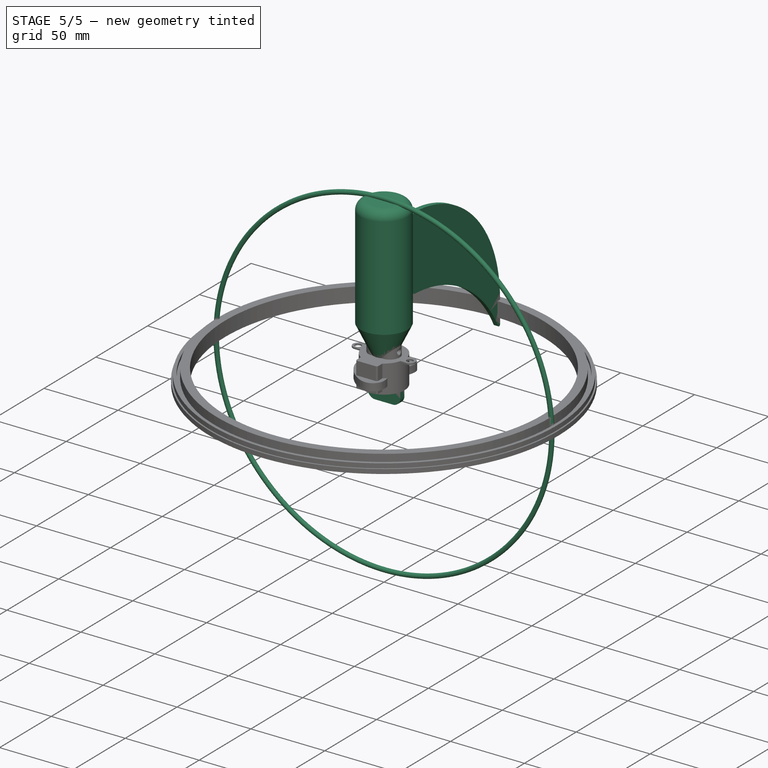
[diagram: stage 5 of 5 — iso view after this stage's code; geometry added in this stage tinted green]
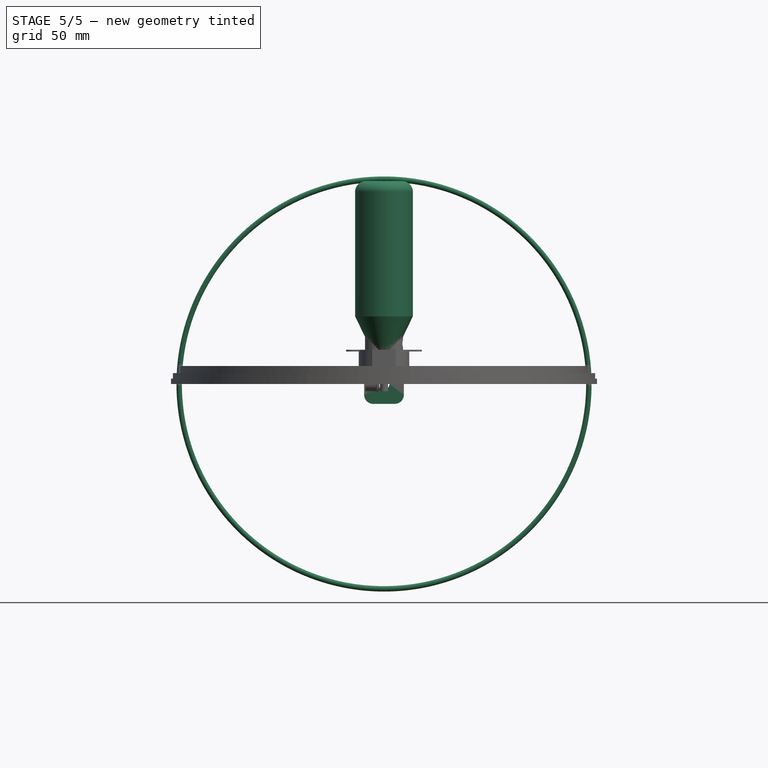
[diagram: stage 5 of 5 — front view after this stage's code; geometry added in this stage tinted green]
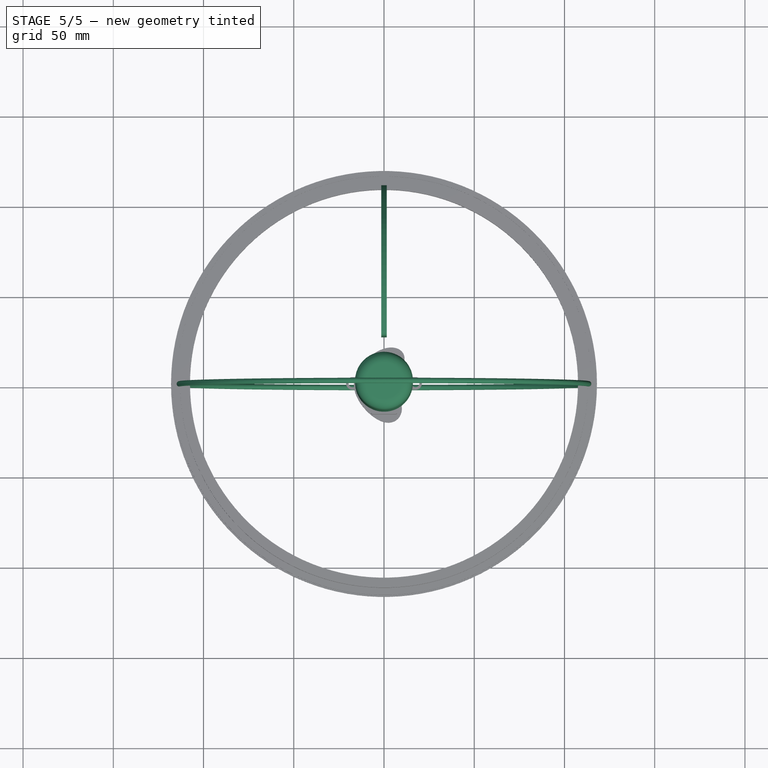
[diagram: stage 5 of 5 — top view after this stage's code; geometry added in this stage tinted green]
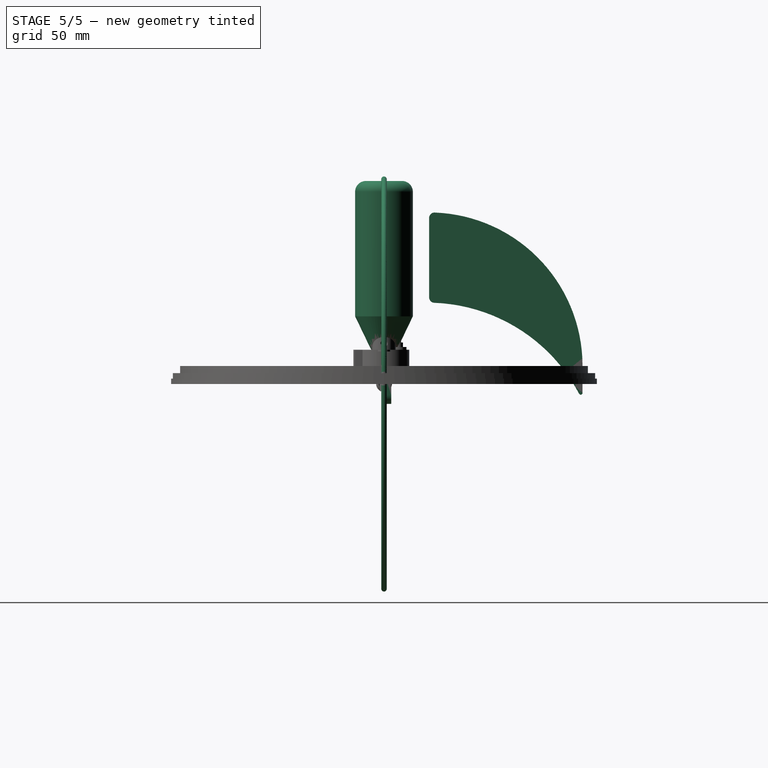
[diagram: stage 5 of 5 — right view after this stage's code; geometry added in this stage tinted green]
FEATURE [Sketcher::SketchObject] Sketch004
  FullyConstrained = true
  MapMode = 5
  Placement = pos=(0,0,0) rot=(1,0,0;1.5708rad)
  Support = -> [XZ_Plane004]
  sketch-geometry (6):
    g0: LineSegment StartX=0 StartY=12.5 StartZ=0 EndX=4 EndY=12.5 EndZ=0
    g1: LineSegment StartX=4 StartY=12.5 StartZ=0 EndX=16 EndY=37.5 EndZ=0
    g2: LineSegment StartX=16 StartY=37.5 StartZ=0 EndX=16 EndY=106.5 EndZ=0
    g3: LineSegment StartX=10 StartY=112.5 StartZ=0 EndX=0 EndY=112.5 EndZ=0
    g4: LineSegment StartX=0 StartY=112.5 StartZ=0 EndX=0 EndY=12.5 EndZ=0
    g5: ArcOfCircle CenterX=10 CenterY=106.5 CenterZ=0 NormalX=0 NormalY=0 NormalZ=1 AngleXU=0 Radius=6 StartAngle=-9e-16 EndAngle=1.5708
  constraints (17):
    c: PointOnObject(g0,g-2)
    c: Horizontal(g0)
    c: Coincident(g0,g1)
    c: Coincident(g1,g2)
    c: Vertical(g2)
    c: Horizontal(g3)
    c: Coincident(g3,g4)
    c: Vertical(g4)
    c: DistanceY(g-1,g0) = 12.5  'working_distance'
    c: Coincident(g0,g4)
    c: DistanceX(g0,g0) = 4  'r_aperture'
    c: DistanceY(g1,g1) = 25
    c: Tangent(g3,g5) = -1.5708
    c: Tangent(g2,g5) = -1.5708
    c: Radius(g5) = 6
    c: DistanceX(g3,g2) = 16  'r_microscope'
    c: DistanceY(g4,g4) = 100  'len_microscope'
FEATURE [PartDesign::Revolution] Revolution
  Angle = 360
  Axis = (0,-2e-16,1)
  Base = (0,0,0)
  Midplane = true
  Placement = pos=(0,0,0) rot=(1,0,0;1.5708rad)
  Profile = -> Sketch004
  ReferenceAxis = -> Sketch004 [V_Axis]
FEATURE [Sketcher::SketchObject] Sketch005
  FullyConstrained = true
  MapMode = 5
  Placement = pos=(0,0,0) rot=(1,0,0;1.5708rad)
  Support = -> [XZ_Plane004]
FEATURE [PartDesign::Body] Body004  label="objective"
  Group = -> [Sketch004,Revolution,Sketch005]
  Origin = -> Origin004
  Placement = pos=(0,0,-9) rot=(0,0,1;0rad)
  Tip = -> Revolution
FEATURE [Sketcher::SketchObject] Sketch008
  FullyConstrained = true
  MapMode = 5
  Placement = pos=(0,0,0) rot=(0.57735,0.57735,0.57735;2.0944rad)
  Support = -> [YZ_Plane008]
  sketch-geometry (1):
    g0: Circle CenterX=0 CenterY=113.5 CenterZ=0 NormalX=0 NormalY=0 NormalZ=1 AngleXU=0 Radius=1.5
  constraints (3):
    c: DistanceY(g-1,g0) = 113.5
    c: Diameter(g0) = 3  'dia_torus'
    c: PointOnObject(g0,g-2)
FEATURE [PartDesign::Revolution] Revolution003
  Angle = 360
  Axis = (1e-16,1,-1e-16)
  Base = (0,0,0)
  Midplane = true
  Placement = pos=(0,0,0) rot=(0.57735,0.57735,0.57735;2.0944rad)
  Profile = -> Sketch008
  ReferenceAxis = -> Y_Axis008
FEATURE [PartDesign::Body] Body008  label="equatorial_torus"
  Group = -> [Sketch008,Revolution003]
  Origin = -> Origin008
  Placement = pos=(0,0,0) rot=(1,0,0;1.5708rad)
  Tip = -> Revolution003
FEATURE [Sketcher::SketchObject] Sketch011
  FullyConstrained = true
  MapMode = 5
  Placement = pos=(0,0,0) rot=(0.57735,0.57735,0.57735;2.0944rad)
  Support = -> [YZ_Plane011]
  sketch-geometry (7):
    g0: LineSegment StartX=25 StartY=92.002 StartZ=0 EndX=25 EndY=47.9977 EndZ=0
    g1: LineSegment StartX=110 StartY=-4.9431 StartZ=0 EndX=110 EndY=10.0569 EndZ=0
    g2: ArcOfCircle CenterX=25 CenterY=10.0569 CenterZ=0 NormalX=0 NormalY=0 NormalZ=1 AngleXU=0 Radius=85 StartAngle=0 EndAngle=1.5342
    g3: ArcOfCircle CenterX=24.1924 CenterY=-49.9283 CenterZ=0 NormalX=0 NormalY=0 NormalZ=1 AngleXU=0 Radius=95 StartAngle=0.4877 EndAngle=1.53193
    g4: ArcOfCircle CenterX=28 CenterY=92.002 CenterZ=0 NormalX=0 NormalY=0 NormalZ=1 AngleXU=0 Radius=3 StartAngle=1.5342 EndAngle=3.14159
    g5: ArcOfCircle CenterX=28 CenterY=47.9977 CenterZ=0 NormalX=0 NormalY=0 NormalZ=1 AngleXU=0 Radius=3 StartAngle=3.14159 EndAngle=4.67353
    g6: ArcOfCircle CenterX=109 CenterY=-4.9431 CenterZ=0 NormalX=0 NormalY=0 NormalZ=1 AngleXU=0 Radius=1 StartAngle=3.62929 EndAngle=6.28319
  constraints (19):
    c: Vertical(g0)
    c: Radius(g2) = 85  'radius_outer'
    c: Radius(g3) = 95  'radius_inner'
    c: Tangent(g0,g4) = -1.5708
    c: Tangent(g2,g4) = -1.5708
    c: Radius(g4) = 3
    c: Tangent(g0,g5) = -1.5708
    c: Tangent(g3,g5) = 1.5708
    c: Radius(g5) = 3
    c: DistanceY(g3,g2) = 50
    c: DistanceX(g0,g1) = 85  'deport'
    c: DistanceX(g-1,g0) = 25
    c: DistanceY(g-1,g3) = 45  'height'
    c: Tangent(g3,g6) = 1.5708
    c: Tangent(g1,g6) = -1.5708
    c: Radius(g6) = 1
    c: DistanceY(g1,g1) = 15
    c: Vertical(g1)
    c: Tangent(g2,g1) = -1.5708
FEATURE [PartDesign::Pad] Pad006
  Direction = (1,1,1)
  Length = 3
  Length2 = 100
  Midplane = true
  Placement = pos=(0,0,0) rot=(0.57735,0.57735,0.57735;2.0944rad)
  Profile = -> Sketch011
  Type = 0
FEATURE [PartDesign::Body] Body011  label="trapeze_front"
  Group = -> [Sketch011,Pad006]
  Origin = -> Origin011
  Placement = pos=(10,-5,0) rot=(0,0,1;0rad)
  Tip = -> Pad006
FEATURE [Part::Sphere] Sphere  label="center"
  Angle1 = -90
  Angle2 = 90
  Angle3 = 360
  AttacherType = Attacher::AttachEngine3D
  Radius = 1
FEATURE [Sketcher::SketchObject] Sketch013
  FullyConstrained = true
  MapMode = 5
  Placement = pos=(0,0,0) rot=(0,0.707107,0.707107;3.14159rad)
  Support = -> [XZ_Plane014]
  sketch-geometry (8):
    g0: LineSegment StartX=-6 StartY=11 StartZ=0 EndX=6 EndY=11 EndZ=0
    g1: LineSegment StartX=11 StartY=6 StartZ=0 EndX=11 EndY=-6 EndZ=0
    g2: LineSegment StartX=6 StartY=-11 StartZ=0 EndX=-6 EndY=-11 EndZ=0
    g3: LineSegment StartX=-11 StartY=-6 StartZ=0 EndX=-11 EndY=6 EndZ=0
    g4: ArcOfCircle CenterX=6 CenterY=-6 CenterZ=0 NormalX=0 NormalY=0 NormalZ=1 AngleXU=0 Radius=5 StartAngle=4.71239 EndAngle=6.28319
    g5: ArcOfCircle CenterX=6 CenterY=6 CenterZ=0 NormalX=0 NormalY=0 NormalZ=1 AngleXU=0 Radius=5 StartAngle=-1.24789e-11 EndAngle=1.5708
    g6: ArcOfCircle CenterX=-6 CenterY=-6 CenterZ=0 NormalX=0 NormalY=0 NormalZ=1 AngleXU=0 Radius=5 StartAngle=3.14159 EndAngle=4.71239
    g7: ArcOfCircle CenterX=-6 CenterY=6 CenterZ=0 NormalX=0 NormalY=0 NormalZ=1 AngleXU=0 Radius=5 StartAngle=1.5708 EndAngle=3.14159
  constraints (17):
    c: Horizontal(g0)
    c: Vertical(g3)
    c: Tangent(g2,g4) = 1.5708
    c: Tangent(g1,g4) = 1.5708
    c: Tangent(g0,g5) = 1.5708
    c: Tangent(g1,g5) = 1.5708
    c: Tangent(g2,g6) = 1.5708
    c: Tangent(g3,g6) = 1.5708
    c: Tangent(g0,g7) = 1.5708
    c: Tangent(g3,g7) = 1.5708
    c: Radius(g6) = 5
    c: Radius(g4) = 5
    c: Symmetric(g4,g5,g-1)
    c: Symmetric(g6,g7,g-1)
    c: DistanceY(g1,g1) = 12  'width_minus_ten'
    c: Symmetric(g6,g4,g-2)
    c: DistanceX(g2,g2) = 12  'width'
FEATURE [PartDesign::Pad] Pad008
  Direction = (1,1,1)
  Length = 4
  Length2 = 100
  Placement = pos=(0,0,0) rot=(1,0,0;1.5708rad)
  Profile = -> Sketch013
  Type = 0
FEATURE [Sketcher::SketchObject] Sketch032
  FullyConstrained = true
  MapMode = 5
  Placement = pos=(0,0,0) rot=(1,0,0;1.5708rad)
  Support = -> [XZ_Plane014]
  sketch-geometry (1):
    g0: Circle CenterX=0 CenterY=0 CenterZ=0 NormalX=0 NormalY=0 NormalZ=1 AngleXU=0 Radius=3.05
  constraints (2):
    c: Coincident(g0,g-1)
    c: Diameter(g0) = 6.1
FEATURE [PartDesign::Pocket] Pocket
  BaseFeature = -> Pad008
  Length = 3.2
  Length2 = 100
  Placement = pos=(0,0,0) rot=(1,0,0;1.5708rad)
  Profile = -> Sketch032
  Type = 0
FEATURE [Sketcher::SketchObject] Sketch033
  FullyConstrained = true
  MapMode = 5
  Placement = pos=(0,4,9e-16) rot=(-1,0,0;1.5708rad)
  Support = -> [Pocket]
  sketch-geometry (1):
    g0: Circle CenterX=0 CenterY=0 CenterZ=0 NormalX=0 NormalY=0 NormalZ=1 AngleXU=0 Radius=5
  constraints (2):
    c: Coincident(g0,g-1)
    c: Diameter(g0) = 10  'phi_tube'
FEATURE [PartDesign::Pocket] Pocket001
  BaseFeature = -> Pocket
  Length = 1
  Length2 = 100
  Placement = pos=(0,0,0) rot=(1,0,0;1.5708rad)
  Profile = -> Sketch033
  Type = 0
FEATURE [PartDesign::Body] Body013  label="post"
  Group = -> [Sketch013,Pad008,Sketch032,Pocket,Sketch033,Pocket001]
  Origin = -> Origin014
  Placement = pos=(0,110,0) rot=(0,0,1;0rad)
  Tip = -> Pocket001
FEATURE [Sketcher::SketchObject] Sketch034
  FullyConstrained = true
  MapMode = 5
  Placement = pos=(0,0,0) rot=(0.57735,0.57735,0.57735;2.0944rad)
  Support = -> [YZ_Plane034]
  sketch-geometry (7):
    g0: LineSegment StartX=25 StartY=92.002 StartZ=0 EndX=25 EndY=47.9977 EndZ=0
    g1: LineSegment StartX=110 StartY=-4.9431 StartZ=0 EndX=110 EndY=10.0569 EndZ=0
    g2: ArcOfCircle CenterX=25 CenterY=10.0569 CenterZ=0 NormalX=0 NormalY=0 NormalZ=1 AngleXU=0 Radius=85 StartAngle=0 EndAngle=1.5342
    g3: ArcOfCircle CenterX=24.1924 CenterY=-49.9283 CenterZ=0 NormalX=0 NormalY=0 NormalZ=1 AngleXU=0 Radius=95 StartAngle=0.4877 EndAngle=1.53193
    g4: ArcOfCircle CenterX=28 CenterY=92.002 CenterZ=0 NormalX=0 NormalY=0 NormalZ=1 AngleXU=0 Radius=3 StartAngle=1.5342 EndAngle=3.14159
    g5: ArcOfCircle CenterX=28 CenterY=47.9977 CenterZ=0 NormalX=0 NormalY=0 NormalZ=1 AngleXU=0 Radius=3 StartAngle=3.14159 EndAngle=4.67353
    g6: ArcOfCircle CenterX=109 CenterY=-4.9431 CenterZ=0 NormalX=0 NormalY=0 NormalZ=1 AngleXU=0 Radius=1 StartAngle=3.62929 EndAngle=6.28319
  constraints (19):
    c: Vertical(g0)
    c: Radius(g2) = 85  'radius_outer'
    c: Radius(g3) = 95  'radius_inner'
    c: Tangent(g0,g4) = -1.5708
    c: Tangent(g2,g4) = -1.5708
    c: Radius(g4) = 3
    c: Tangent(g0,g5) = -1.5708
    c: Tangent(g3,g5) = 1.5708
    c: Radius(g5) = 3
    c: DistanceY(g3,g2) = 50
    c: DistanceX(g0,g1) = 85  'deport'
    c: DistanceX(g-1,g0) = 25
    c: DistanceY(g-1,g3) = 45  'height'
    c: Tangent(g3,g6) = 1.5708
    c: Tangent(g1,g6) = -1.5708
    c: Radius(g6) = 1
    c: DistanceY(g1,g1) = 15
    c: Vertical(g1)
    c: Tangent(g2,g1) = -1.5708
FEATURE [PartDesign::Pad] Pad024
  Direction = (1,1,1)
  Length = 3
  Length2 = 100
  Midplane = true
  Placement = pos=(0,0,0) rot=(0.57735,0.57735,0.57735;2.0944rad)
  Profile = -> Sketch034
  Type = 0
FEATURE [PartDesign::Body] Body031  label="trapeze_back"
  Group = -> [Sketch034,Pad024]
  Origin = -> Origin034
  Placement = pos=(-10,-5,0) rot=(0,0,1;0rad)
  Tip = -> Pad024
FEATURE [App::Part] Part  label="microscope"
  Group = -> [Body004,Body011,Body031]
  Origin = -> Origin013
FEATURE [Sketcher::SketchObject] Sketch035
  FullyConstrained = true
  MapMode = 5
  Support = -> [XY_Plane036]
  sketch-geometry (1):
    g0: Circle CenterX=0 CenterY=0 CenterZ=0 NormalX=0 NormalY=0 NormalZ=1 AngleXU=0 Radius=14
  constraints (2):
    c: Coincident(g0,g-1)
    c: Diameter(g0) = 28  'motor_dia'
FEATURE [PartDesign::Pad] Pad025
  Direction = (1,1,1)
  Length = 19
  Length2 = 100
  Profile = -> Sketch035
  Type = 0
FEATURE [Sketcher::SketchObject] Sketch036
  FullyConstrained = true
  MapMode = 5
  Placement = pos=(0,0,19) rot=(0,0,1;0rad)
  Support = -> [Pad025]
  sketch-geometry (1):
    g0: Circle CenterX=0 CenterY=8 CenterZ=0 NormalX=0 NormalY=0 NormalZ=1 AngleXU=0 Radius=4.5
  constraints (3):
    c: PointOnObject(g0,g-2)
    c: DistanceY(g-1,g0) = 8
    c: Diameter(g0) = 9
FEATURE [PartDesign::Pad] Pad026
  BaseFeature = -> Pad025
  Direction = (1,1,1)
  Length = 1.5
  Length2 = 100
  Profile = -> Sketch036
  Type = 0
FEATURE [Sketcher::SketchObject] Sketch002
  FullyConstrained = true
  MapMode = 5
  Placement = pos=(0,0,20.5) rot=(0,0,1;0rad)
  Support = -> [Pad026]
  sketch-geometry (1):
    g0: Circle CenterX=0 CenterY=8 CenterZ=0 NormalX=0 NormalY=0 NormalZ=1 AngleXU=0 Radius=2.5
  constraints (3):
    c: Vertical(g0,g-1)
    c: DistanceY(g-1,g0) = 8
    c: Diameter(g0) = 5
FEATURE [PartDesign::Pad] Pad002
  BaseFeature = -> Pad026
  Direction = (1,1,1)
  Length = 2.5
  Length2 = 100
  Profile = -> Sketch002
  Type = 0
FEATURE [Sketcher::SketchObject] Sketch003
  FullyConstrained = true
  MapMode = 5
  Placement = pos=(0,0,23) rot=(0,0,1;0rad)
  Support = -> [Pad002]
  sketch-geometry (4):
    g0: LineSegment StartX=-2 StartY=9.5 StartZ=0 EndX=2 EndY=9.5 EndZ=0
    g1: LineSegment StartX=-2 StartY=6.5 StartZ=0 EndX=2 EndY=6.5 EndZ=0
    g2: ArcOfCircle CenterX=0 CenterY=8 CenterZ=0 NormalX=0 NormalY=0 NormalZ=1 AngleXU=0 Radius=2.5 StartAngle=5.63968 EndAngle=6.92669
    g3: ArcOfCircle CenterX=0 CenterY=8 CenterZ=0 NormalX=0 NormalY=0 NormalZ=1 AngleXU=0 Radius=2.5 StartAngle=2.49809 EndAngle=3.78509
  constraints (13):
    c: Horizontal(g1)
    c: PointOnObject(g2,g-2)
    c: Coincident(g2,g0)
    c: Coincident(g2,g1)
    c: Coincident(g3,g2)
    c: Coincident(g3,g0)
    c: Coincident(g3,g1)
    c: Diameter(g3) = 5
    c: Diameter(g2) = 5
    c: Horizontal(g0)
    c: DistanceY(g1,g0) = 3
    c: DistanceY(g-1,g2) = 8
    c: DistanceY(g1,g2) = 1.5
FEATURE [PartDesign::Pad] Pad003
  BaseFeature = -> Pad002
  Direction = (1,1,1)
  Length = 6
  Length2 = 100
  Profile = -> Sketch003
  Type = 0
FEATURE [Sketcher::SketchObject] Sketch038
  FullyConstrained = true
  MapMode = 5
  Placement = pos=(0,0,19) rot=(0,0,1;0rad)
  Support = -> [Pad028]
  sketch-geometry (2):
    g0: Circle CenterX=-17.5 CenterY=0 CenterZ=0 NormalX=0 NormalY=0 NormalZ=1 AngleXU=0 Radius=2.1
    g1: Circle CenterX=17.5 CenterY=0 CenterZ=0 NormalX=0 NormalY=0 NormalZ=1 AngleXU=0 Radius=2.1
  constraints (5):
    c: PointOnObject(g0,g-1)
    c: Diameter(g0) = 4.2
    c: Diameter(g1) = 4.2
    c: DistanceX(g0,g1) = 35
    c: Symmetric(g1,g0,g-2)
FEATURE [PartDesign::Hole] Hole001
  BaseFeature = -> Pad028
  Depth = 25
  DepthType = 0
  Diameter = 4.2
  DrillForDepth = false
  DrillPoint = 1
  DrillPointAngle = 118
  HoleCutCountersinkAngle = 90
  HoleCutCustomValues = false
  HoleCutDepth = 0
  HoleCutDiameter = 6.1
  HoleCutType = 0
  ModelActualThread = false
  Profile = -> Sketch038
  Tapered = false
  TaperedAngle = 90
  ThreadAngle = 0
  ThreadClass = 0
  ThreadCutOffInner = 0
  ThreadCutOffOuter = 0
  ThreadDirection = 0
  ThreadFit = 0
  ThreadPitch = 0
  ThreadSize = 0
  ThreadType = 0
  Threaded = false
FEATURE [Sketcher::SketchObject] Sketch006
  FullyConstrained = true
  MapMode = 5
  Placement = pos=(0,0,19) rot=(0,0,1;0rad)
  Support = -> [Hole001]
  sketch-geometry (6):
    g0: LineSegment StartX=-7.3 StartY=-11 StartZ=0 EndX=7.3 EndY=-11 EndZ=0
    g1: LineSegment StartX=7.3 StartY=-11 StartZ=0 EndX=7.3 EndY=-16 EndZ=0
    g2: LineSegment StartX=6.3 StartY=-17 StartZ=0 EndX=-6.3 EndY=-17 EndZ=0
    g3: LineSegment StartX=-7.3 StartY=-16 StartZ=0 EndX=-7.3 EndY=-11 EndZ=0
    g4: ArcOfCircle CenterX=-6.3 CenterY=-16 CenterZ=0 NormalX=0 NormalY=0 NormalZ=1 AngleXU=0 Radius=1 StartAngle=3.14159 EndAngle=4.71239
    g5: ArcOfCircle CenterX=6.3 CenterY=-16 CenterZ=0 NormalX=0 NormalY=0 NormalZ=1 AngleXU=0 Radius=1 StartAngle=4.71239 EndAngle=6.28319
  constraints (15):
    c: Coincident(g0,g1)
    c: Coincident(g3,g0)
    c: Horizontal(g0)
    c: Vertical(g1)
    c: Vertical(g3)
    c: Tangent(g3,g4) = 1.5708
    c: Tangent(g2,g4) = 1.5708
    c: Tangent(g1,g5) = 1.5708
    c: Tangent(g2,g5) = 1.5708
    c: Radius(g4) = 1
    c: Radius(g5) = 1
    c: DistanceY(g2,g0) = 6
    c: Symmetric(g1,g3,g-2)
    c: DistanceY(g2,g-1) = 17
    c: DistanceX(g3,g1) = 14.6
FEATURE [PartDesign::Pad] Pad027
  BaseFeature = -> Hole001
  Direction = (1,1,1)
  Length = 17
  Length2 = 100
  Profile = -> Sketch006
  Reversed = true
  Type = 0
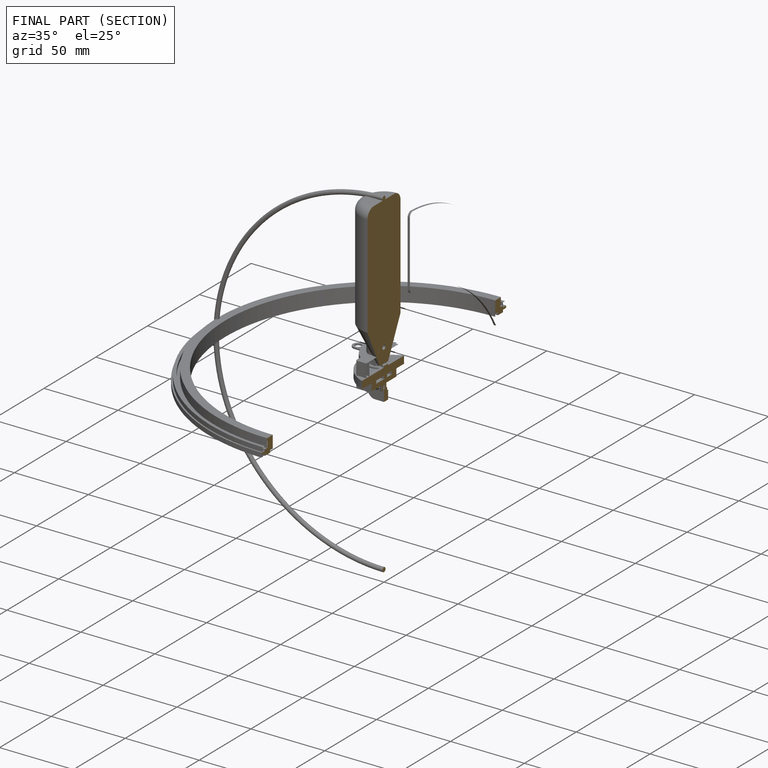
[diagram: finished part — half-section view (interior)]
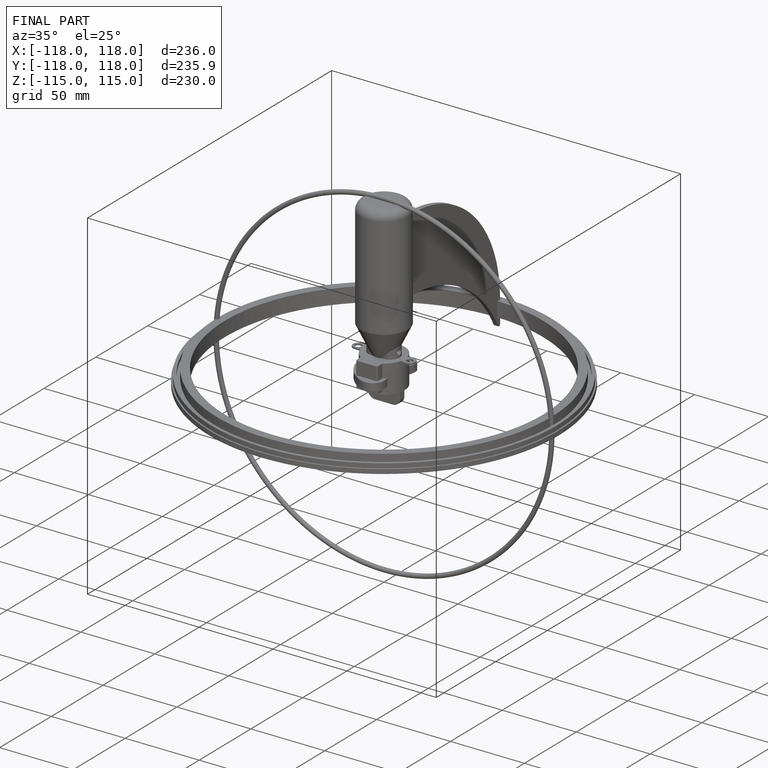
[diagram: finished part — iso view with bounding-box wireframe]
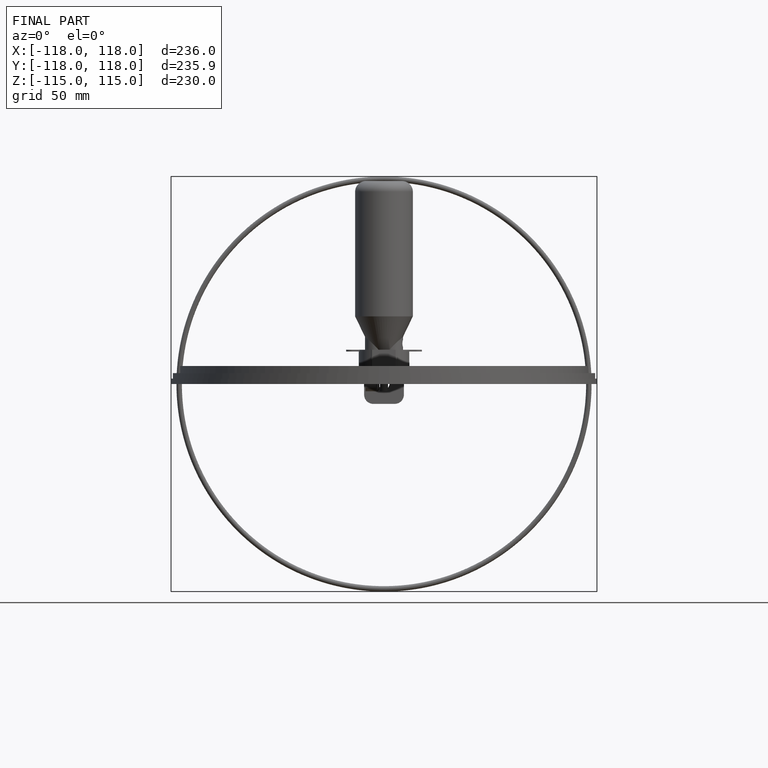
[diagram: finished part — front view with bounding-box wireframe]
